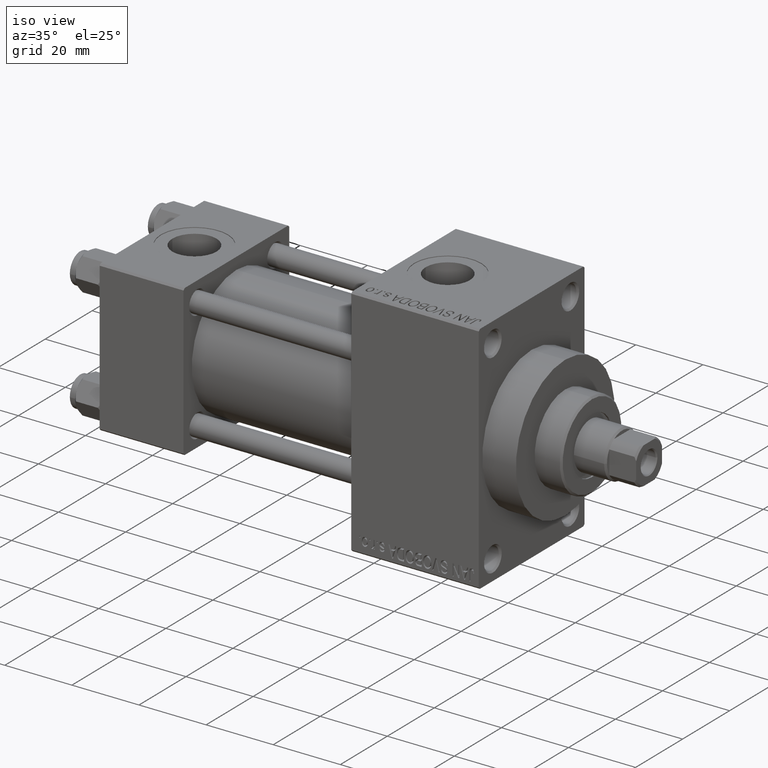
[diagram: clean part render]
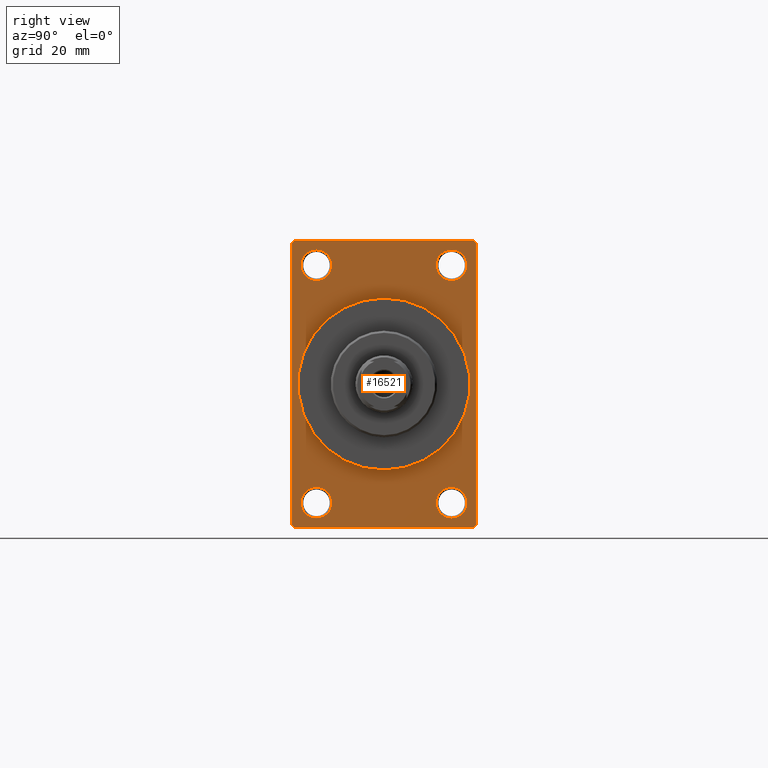
[diagram: tour spotlight — one face highlighted and labeled with its STEP entity id]
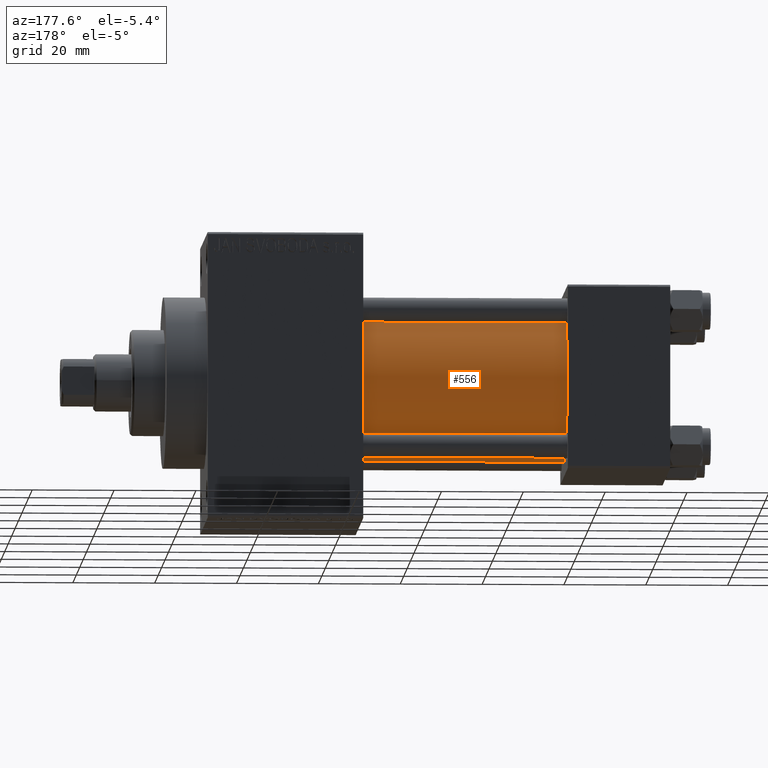
[diagram: tour spotlight — one face highlighted and labeled with its STEP entity id]
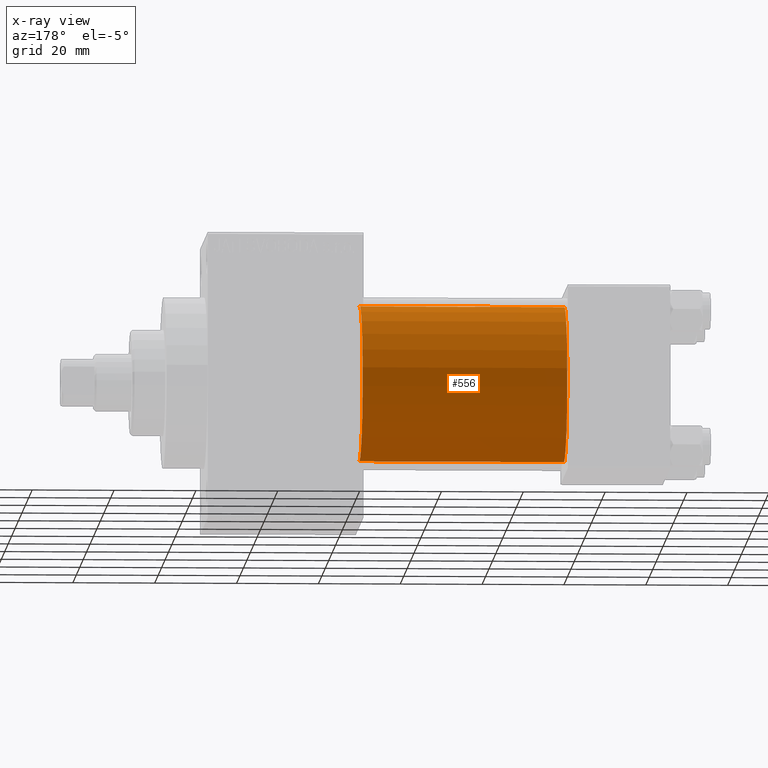
[diagram: x-ray of the same camera — body ghosted, this tour face saturated]
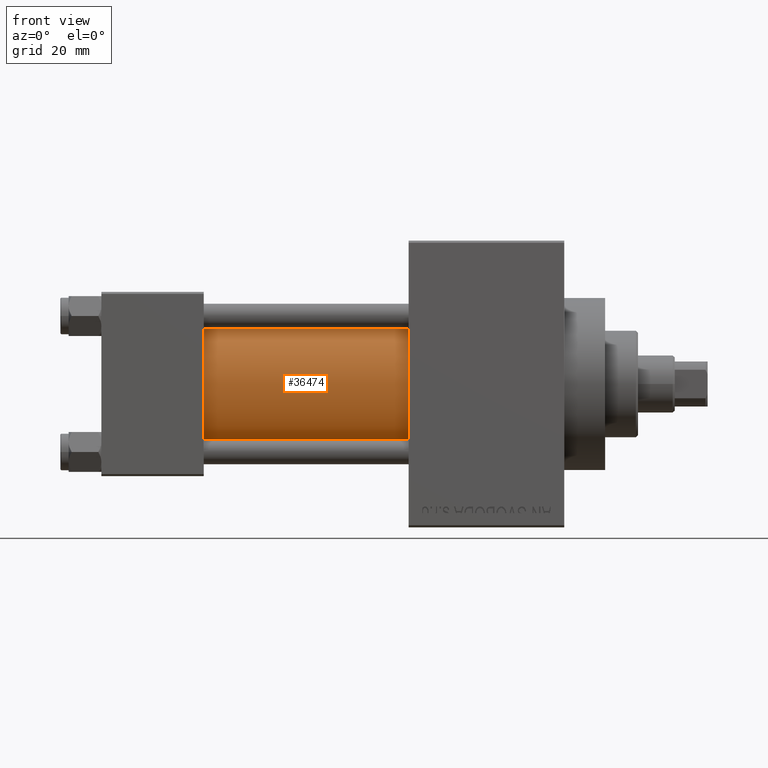
[diagram: tour spotlight — one face highlighted and labeled with its STEP entity id]
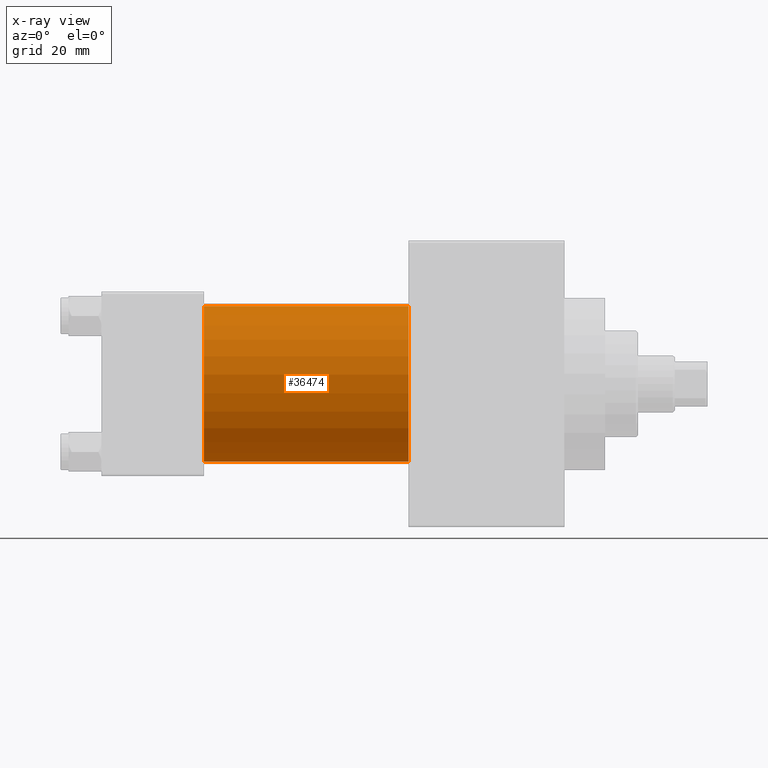
[diagram: x-ray of the same camera — body ghosted, this tour face saturated]
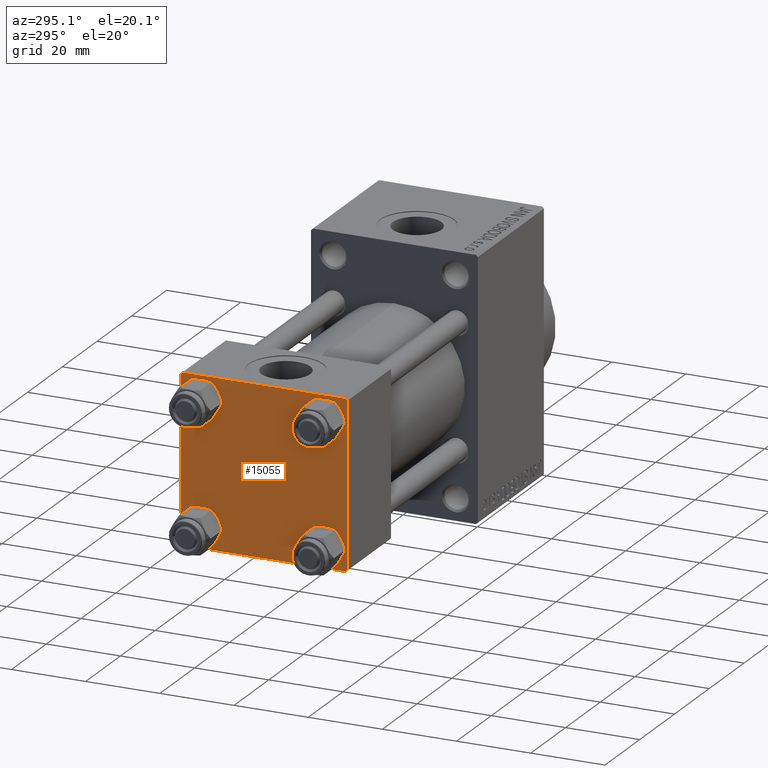
[diagram: tour spotlight — one face highlighted and labeled with its STEP entity id]
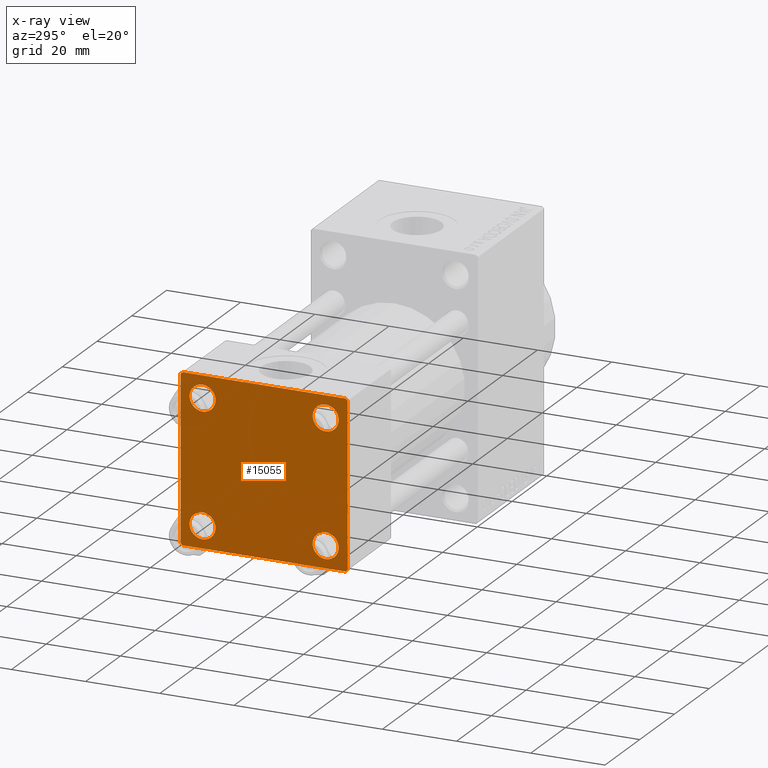
[diagram: x-ray of the same camera — body ghosted, this tour face saturated]
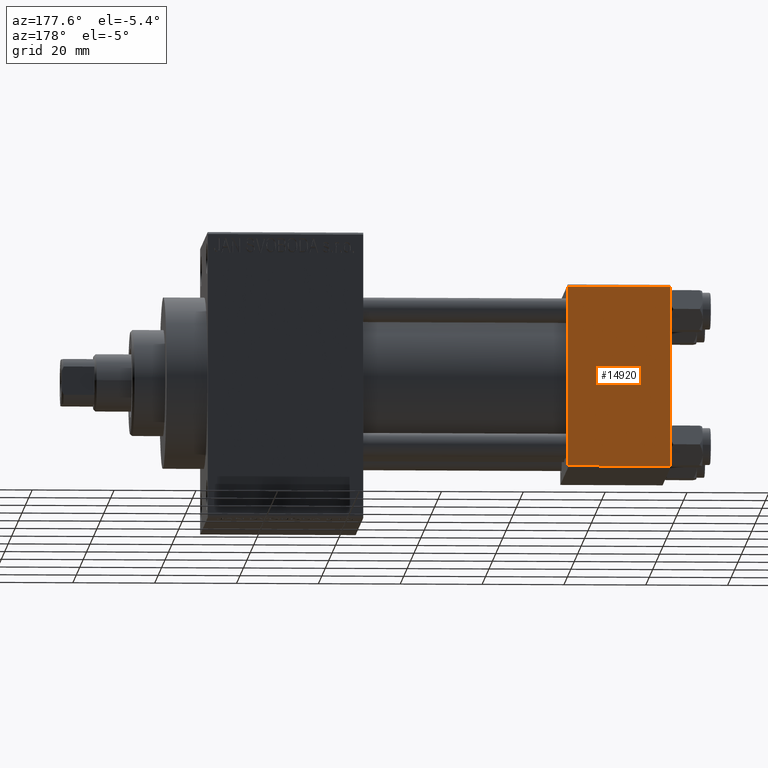
[diagram: tour spotlight — one face highlighted and labeled with its STEP entity id]
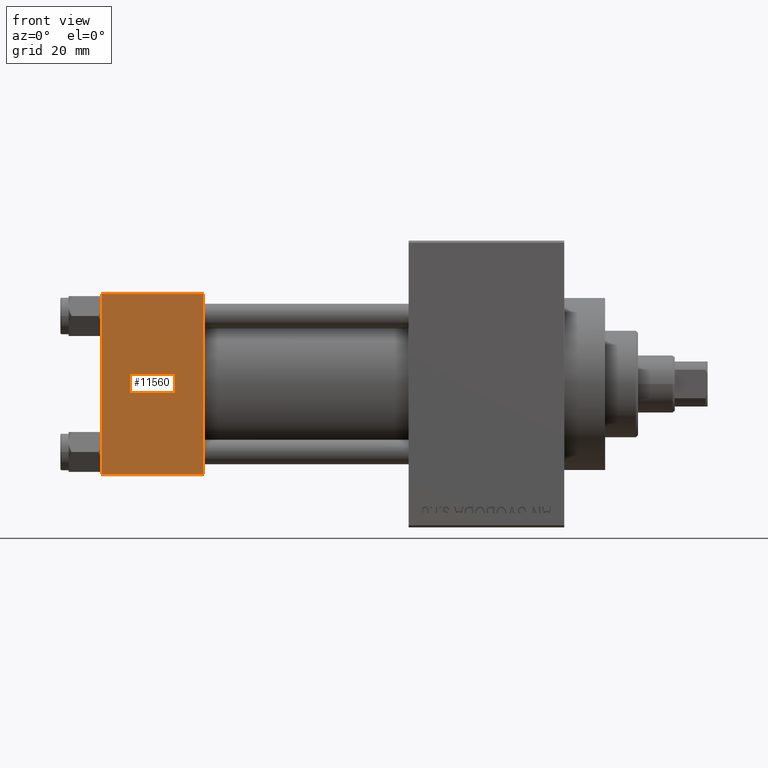
[diagram: tour spotlight — one face highlighted and labeled with its STEP entity id]
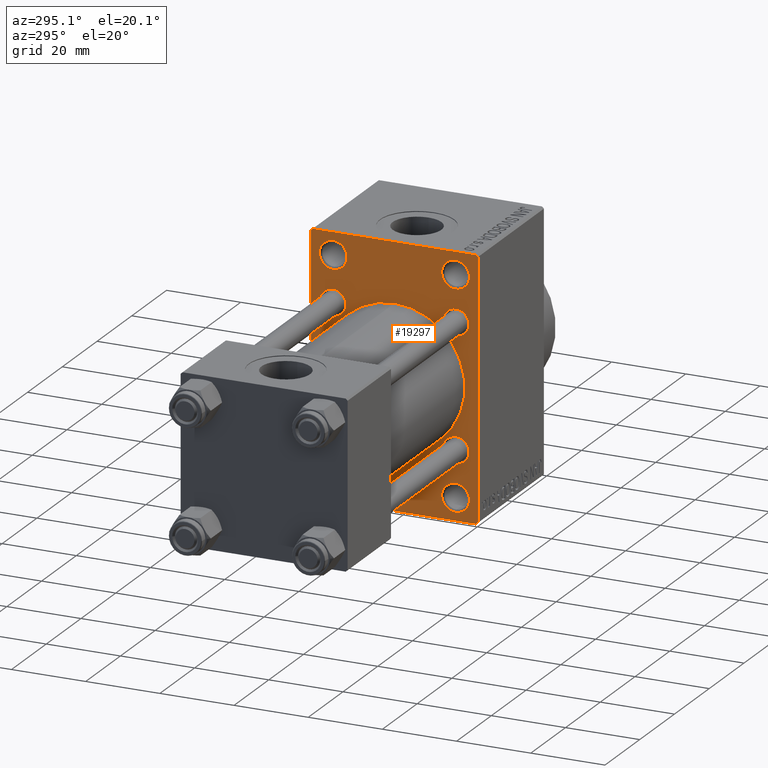
[diagram: tour spotlight — one face highlighted and labeled with its STEP entity id]
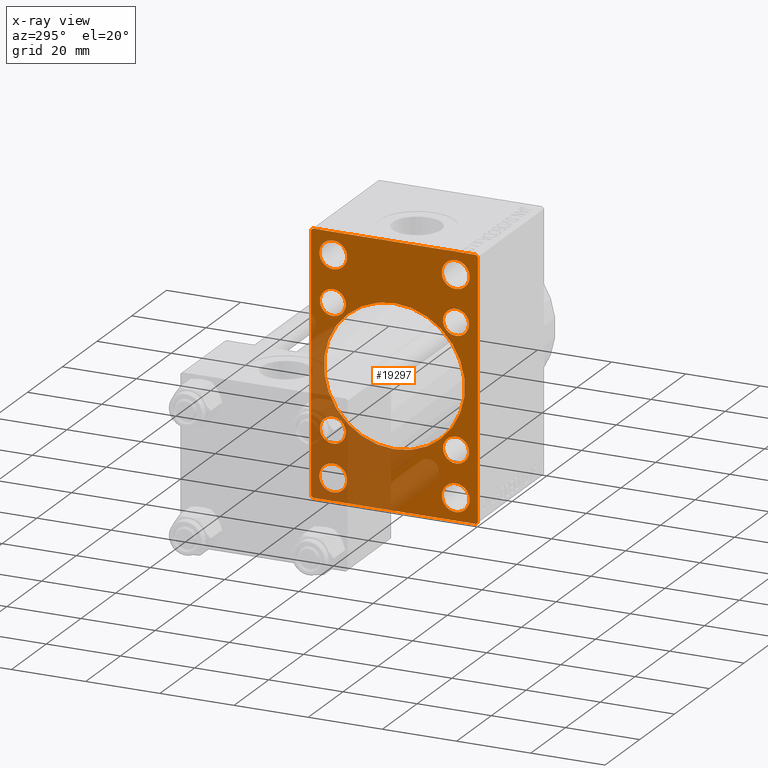
[diagram: x-ray of the same camera — body ghosted, this tour face saturated]
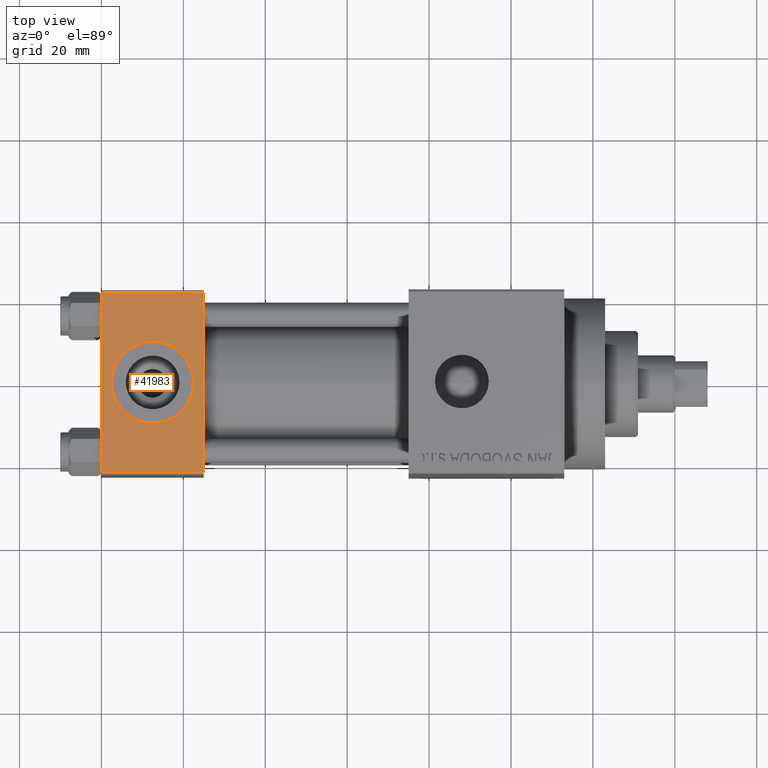
[diagram: tour spotlight — one face highlighted and labeled with its STEP entity id]
A machine part: a face-by-face anatomy tour. The part has 1102 B-rep faces; the first image is the clean iso view, then the 8 largest visible faces are spotlighted one at a time (largest first), each with its STEP entity span.

Face 1 — right view, entity #16521. In plain terms, the highlighted planar face has unit normal (-1, 0, 0).
Definition (entity closure, byte-faithful):
#31 = AXIS2_PLACEMENT_3D ( 'NONE', #10330, #21496, #28672 ) ;
#98 = ORIENTED_EDGE ( 'NONE', *, *, #10599, .T. ) ;
#120 = CARTESIAN_POINT ( 'NONE',  ( 113.0000000000000142, 21.99999999999999645, 35.00000000000000000 ) ) ;
#194 = DIRECTION ( 'NONE',  ( 0.000000000000000000, 0.7071067811865376918, -0.7071067811865574537 ) ) ;
#492 = CARTESIAN_POINT ( 'NONE',  ( 113.0000000000000142, -16.50000000000000000, 25.24999999999993960 ) ) ;
#524 = VERTEX_POINT ( 'NONE', #5676 ) ;
#809 = ORIENTED_EDGE ( 'NONE', *, *, #43229, .T. ) ;
#965 = AXIS2_PLACEMENT_3D ( 'NONE', #5095, #26548, #38460 ) ;
#1078 = DIRECTION ( 'NONE',  ( 0.000000000000000000, 0.000000000000000000, 1.000000000000000000 ) ) ;
#2007 = CIRCLE ( 'NONE', #5036, 21.00000000000000000 ) ;
#2172 = DIRECTION ( 'NONE',  ( 0.000000000000000000, 0.000000000000000000, 1.000000000000000000 ) ) ;
#2342 = EDGE_CURVE ( 'NONE', #30075, #32445, #33110, .T. ) ;
#2430 = VECTOR ( 'NONE', #194, 999.9999999999998863 ) ;
#2895 = VERTEX_POINT ( 'NONE', #37869 ) ;
#3102 = CIRCLE ( 'NONE', #31, 3.750000000000072831 ) ;
#3170 = DIRECTION ( 'NONE',  ( 0.000000000000000000, 0.000000000000000000, 1.000000000000000000 ) ) ;
#3262 = DIRECTION ( 'NONE',  ( -0.000000000000000000, 0.000000000000000000, 1.000000000000000000 ) ) ;
#3737 = DIRECTION ( 'NONE',  ( -1.000000000000000000, -0.000000000000000000, -0.000000000000000000 ) ) ;
#3928 = DIRECTION ( 'NONE',  ( 0.000000000000000000, -0.7071067811865474617, 0.7071067811865474617 ) ) ;
#3941 = ORIENTED_EDGE ( 'NONE', *, *, #17786, .T. ) ;
#4105 = ORIENTED_EDGE ( 'NONE', *, *, #41413, .F. ) ;
#4197 = CARTESIAN_POINT ( 'NONE',  ( 113.0000000000000142, -16.50000000000000000, 32.75000000000007816 ) ) ;
#4204 = CARTESIAN_POINT ( 'NONE',  ( 113.0000000000000142, -16.50000000000000000, -28.99999999999999289 ) ) ;
#4488 = CARTESIAN_POINT ( 'NONE',  ( 113.0000000000000142, 0.000000000000000000, 21.00000000000000000 ) ) ;
#4809 = AXIS2_PLACEMENT_3D ( 'NONE', #23209, #24157, #34662 ) ;
#4989 = VERTEX_POINT ( 'NONE', #4197 ) ;
#5036 = AXIS2_PLACEMENT_3D ( 'NONE', #37028, #40836, #19139 ) ;
#5095 = CARTESIAN_POINT ( 'NONE',  ( 113.0000000000000142, 16.50000000000000000, -28.99999999999999289 ) ) ;
#5097 = EDGE_CURVE ( 'NONE', #524, #19921, #5378, .T. ) ;
#5196 = FACE_OUTER_BOUND ( 'NONE', #19902, .T. ) ;
#5378 = LINE ( 'NONE', #12774, #10653 ) ;
#5609 = DIRECTION ( 'NONE',  ( 0.000000000000000000, -1.000000000000000000, 0.000000000000000000 ) ) ;
#5676 = CARTESIAN_POINT ( 'NONE',  ( 113.0000000000000142, 21.99999999999999645, -35.00000000000000000 ) ) ;
#5833 = AXIS2_PLACEMENT_3D ( 'NONE', #7961, #35074, #2172 ) ;
#6100 = ORIENTED_EDGE ( 'NONE', *, *, #14891, .F. ) ;
#6411 = DIRECTION ( 'NONE',  ( 0.000000000000000000, 0.000000000000000000, -1.000000000000000000 ) ) ;
#6478 = AXIS2_PLACEMENT_3D ( 'NONE', #19202, #23009, #44469 ) ;
#6977 = DIRECTION ( 'NONE',  ( -0.000000000000000000, 0.7071067811865474617, 0.7071067811865474617 ) ) ;
#7136 = CARTESIAN_POINT ( 'NONE',  ( 113.0000000000000142, 21.99999999999999645, 35.00000000000000000 ) ) ;
#7483 = DIRECTION ( 'NONE',  ( 0.000000000000000000, 0.000000000000000000, -1.000000000000000000 ) ) ;
#7538 = ORIENTED_EDGE ( 'NONE', *, *, #32105, .T. ) ;
#7603 = EDGE_LOOP ( 'NONE', ( #14912, #9272 ) ) ;
#7961 = CARTESIAN_POINT ( 'NONE',  ( 113.0000000000000142, 16.50000000000000000, 29.00000000000000355 ) ) ;
#8229 = CARTESIAN_POINT ( 'NONE',  ( 113.0000000000000142, -16.50000000000000000, 29.00000000000000711 ) ) ;
#9272 = ORIENTED_EDGE ( 'NONE', *, *, #18993, .T. ) ;
#10330 = CARTESIAN_POINT ( 'NONE',  ( 113.0000000000000142, 16.50000000000000000, 29.00000000000000355 ) ) ;
#10338 = VERTEX_POINT ( 'NONE', #27845 ) ;
#10599 = EDGE_CURVE ( 'NONE', #2895, #10338, #3102, .T. ) ;
#10653 = VECTOR ( 'NONE', #5609, 1000.000000000000000 ) ;
#10874 = CIRCLE ( 'NONE', #21525, 21.00000000000000000 ) ;
#11049 = CARTESIAN_POINT ( 'NONE',  ( 113.0000000000000142, -21.99999999999997513, -35.00000000000000000 ) ) ;
#11610 = EDGE_LOOP ( 'NONE', ( #46375, #6100 ) ) ;
#11777 = ORIENTED_EDGE ( 'NONE', *, *, #46770, .T. ) ;
#11990 = ORIENTED_EDGE ( 'NONE', *, *, #15729, .T. ) ;
#12227 = CARTESIAN_POINT ( 'NONE',  ( 113.0000000000000142, -22.50000000000000355, 34.50000000000000000 ) ) ;
#12304 = CARTESIAN_POINT ( 'NONE',  ( 113.0000000000000142, 2.571758278209441661E-15, -21.00000000000000000 ) ) ;
#12352 = FACE_BOUND ( 'NONE', #42355, .T. ) ;
#12582 = CARTESIAN_POINT ( 'NONE',  ( 113.0000000000000142, 0.000000000000000000, 0.000000000000000000 ) ) ;
#12586 = EDGE_CURVE ( 'NONE', #27325, #25537, #32776, .T. ) ;
#12710 = ORIENTED_EDGE ( 'NONE', *, *, #5097, .F. ) ;
#12747 = EDGE_CURVE ( 'NONE', #30010, #4989, #35954, .T. ) ;
#12774 = CARTESIAN_POINT ( 'NONE',  ( 113.0000000000000142, 22.49999999999999645, -35.00000000000000000 ) ) ;
#12866 = CARTESIAN_POINT ( 'NONE',  ( 113.0000000000000142, 0.000000000000000000, 0.000000000000000000 ) ) ;
#13285 = DIRECTION ( 'NONE',  ( -1.000000000000000000, 0.000000000000000000, -0.000000000000000000 ) ) ;
#13918 = CIRCLE ( 'NONE', #965, 3.750000000000076383 ) ;
#14275 = CARTESIAN_POINT ( 'NONE',  ( 113.0000000000000142, -21.99999999999998934, 35.00000000000000000 ) ) ;
#14690 = ORIENTED_EDGE ( 'NONE', *, *, #12747, .T. ) ;
#14891 = EDGE_CURVE ( 'NONE', #17650, #23244, #10874, .T. ) ;
#14912 = ORIENTED_EDGE ( 'NONE', *, *, #38055, .T. ) ;
#15729 = EDGE_CURVE ( 'NONE', #30653, #19921, #36444, .T. ) ;
#15975 = CARTESIAN_POINT ( 'NONE',  ( 113.0000000000000142, 16.50000000000000000, -32.75000000000007105 ) ) ;
#16521 = ADVANCED_FACE ( 'NONE', ( #30467, #45014, #12352, #23290, #26895, #5196 ), #34285, .F. ) ;
#16590 = ORIENTED_EDGE ( 'NONE', *, *, #17837, .T. ) ;
#16884 = AXIS2_PLACEMENT_3D ( 'NONE', #12582, #13285, #3262 ) ;
#17054 = ORIENTED_EDGE ( 'NONE', *, *, #45710, .T. ) ;
#17650 = VERTEX_POINT ( 'NONE', #12304 ) ;
#17786 = EDGE_CURVE ( 'NONE', #22958, #30653, #37282, .T. ) ;
#17837 = EDGE_CURVE ( 'NONE', #32445, #30075, #13918, .T. ) ;
#18062 = VECTOR ( 'NONE', #41777, 1000.000000000000114 ) ;
#18076 = CARTESIAN_POINT ( 'NONE',  ( 113.0000000000000142, 22.49999999999999645, 35.00000000000000000 ) ) ;
#18396 = CARTESIAN_POINT ( 'NONE',  ( 113.0000000000000142, -16.50000000000000000, 29.00000000000000711 ) ) ;
#18474 = LINE ( 'NONE', #28113, #38551 ) ;
#18664 = ORIENTED_EDGE ( 'NONE', *, *, #29784, .T. ) ;
#18993 = EDGE_CURVE ( 'NONE', #33464, #27077, #37545, .T. ) ;
#19139 = DIRECTION ( 'NONE',  ( 0.000000000000000000, 0.000000000000000000, -1.000000000000000000 ) ) ;
#19202 = CARTESIAN_POINT ( 'NONE',  ( 113.0000000000000142, 16.50000000000000000, -28.99999999999999289 ) ) ;
#19454 = ORIENTED_EDGE ( 'NONE', *, *, #2342, .T. ) ;
#19902 = EDGE_LOOP ( 'NONE', ( #3941, #11990, #12710, #809, #4105, #35119, #7538, #18664 ) ) ;
#19921 = VERTEX_POINT ( 'NONE', #11049 ) ;
#21496 = DIRECTION ( 'NONE',  ( -1.000000000000000000, -0.000000000000000000, -0.000000000000000000 ) ) ;
#21525 = AXIS2_PLACEMENT_3D ( 'NONE', #12866, #34323, #42411 ) ;
#22097 = DIRECTION ( 'NONE',  ( 0.000000000000000000, -1.000000000000000000, 0.000000000000000000 ) ) ;
#22958 = VERTEX_POINT ( 'NONE', #12227 ) ;
#23009 = DIRECTION ( 'NONE',  ( -1.000000000000000000, -0.000000000000000000, -0.000000000000000000 ) ) ;
#23209 = CARTESIAN_POINT ( 'NONE',  ( 113.0000000000000142, -16.50000000000000000, -28.99999999999999289 ) ) ;
#23244 = VERTEX_POINT ( 'NONE', #4488 ) ;
#23290 = FACE_BOUND ( 'NONE', #44959, .T. ) ;
#24157 = DIRECTION ( 'NONE',  ( -1.000000000000000000, -0.000000000000000000, -0.000000000000000000 ) ) ;
#25537 = VERTEX_POINT ( 'NONE', #7136 ) ;
#26083 = DIRECTION ( 'NONE',  ( -1.000000000000000000, -0.000000000000000000, -0.000000000000000000 ) ) ;
#26548 = DIRECTION ( 'NONE',  ( -1.000000000000000000, -0.000000000000000000, -0.000000000000000000 ) ) ;
#26791 = VECTOR ( 'NONE', #3928, 1000.000000000000114 ) ;
#26895 = FACE_BOUND ( 'NONE', #11610, .T. ) ;
#27077 = VERTEX_POINT ( 'NONE', #45498 ) ;
#27173 = CIRCLE ( 'NONE', #43941, 3.750000000000069278 ) ;
#27325 = VERTEX_POINT ( 'NONE', #45911 ) ;
#27845 = CARTESIAN_POINT ( 'NONE',  ( 113.0000000000000142, 16.50000000000000000, 32.75000000000007816 ) ) ;
#28113 = CARTESIAN_POINT ( 'NONE',  ( 113.0000000000000142, 22.49999999999999645, 35.00000000000000000 ) ) ;
#28672 = DIRECTION ( 'NONE',  ( 0.000000000000000000, 0.000000000000000000, 1.000000000000000000 ) ) ;
#29040 = CARTESIAN_POINT ( 'NONE',  ( 113.0000000000000142, -21.99999999999998934, -35.00000000000000000 ) ) ;
#29784 = EDGE_CURVE ( 'NONE', #42467, #22958, #45348, .T. ) ;
#29981 = LINE ( 'NONE', #18076, #46171 ) ;
#30010 = VERTEX_POINT ( 'NONE', #492 ) ;
#30075 = VERTEX_POINT ( 'NONE', #15975 ) ;
#30467 = FACE_BOUND ( 'NONE', #43837, .T. ) ;
#30574 = CARTESIAN_POINT ( 'NONE',  ( 113.0000000000000142, -22.50000000000000355, -34.49999999999997158 ) ) ;
#30590 = EDGE_CURVE ( 'NONE', #23244, #17650, #2007, .T. ) ;
#30653 = VERTEX_POINT ( 'NONE', #30574 ) ;
#31129 = CIRCLE ( 'NONE', #36480, 3.750000000000076383 ) ;
#32105 = EDGE_CURVE ( 'NONE', #25537, #42467, #29981, .T. ) ;
#32132 = AXIS2_PLACEMENT_3D ( 'NONE', #8229, #26083, #1078 ) ;
#32445 = VERTEX_POINT ( 'NONE', #39723 ) ;
#32776 = LINE ( 'NONE', #120, #26791 ) ;
#33110 = CIRCLE ( 'NONE', #6478, 3.750000000000076383 ) ;
#33460 = VERTEX_POINT ( 'NONE', #41374 ) ;
#33464 = VERTEX_POINT ( 'NONE', #33989 ) ;
#33989 = CARTESIAN_POINT ( 'NONE',  ( 113.0000000000000142, -16.50000000000000000, -25.24999999999992184 ) ) ;
#34285 = PLANE ( 'NONE',  #16884 ) ;
#34323 = DIRECTION ( 'NONE',  ( 1.000000000000000000, 0.000000000000000000, 0.000000000000000000 ) ) ;
#34662 = DIRECTION ( 'NONE',  ( 0.000000000000000000, 0.000000000000000000, 1.000000000000000000 ) ) ;
#34730 = CIRCLE ( 'NONE', #5833, 3.750000000000072831 ) ;
#35074 = DIRECTION ( 'NONE',  ( -1.000000000000000000, -0.000000000000000000, -0.000000000000000000 ) ) ;
#35119 = ORIENTED_EDGE ( 'NONE', *, *, #12586, .T. ) ;
#35369 = CARTESIAN_POINT ( 'NONE',  ( 113.0000000000000142, 22.49999999999999645, -34.50000000000000000 ) ) ;
#35954 = CIRCLE ( 'NONE', #32132, 3.750000000000069278 ) ;
#36444 = LINE ( 'NONE', #29040, #2430 ) ;
#36480 = AXIS2_PLACEMENT_3D ( 'NONE', #4204, #3737, #44016 ) ;
#37028 = CARTESIAN_POINT ( 'NONE',  ( 113.0000000000000142, 0.000000000000000000, 0.000000000000000000 ) ) ;
#37282 = LINE ( 'NONE', #43490, #38290 ) ;
#37495 = CARTESIAN_POINT ( 'NONE',  ( 113.0000000000000142, -22.50000000000000355, 34.50000000000000000 ) ) ;
#37545 = CIRCLE ( 'NONE', #4809, 3.750000000000076383 ) ;
#37869 = CARTESIAN_POINT ( 'NONE',  ( 113.0000000000000142, 16.50000000000000000, 25.24999999999993250 ) ) ;
#38055 = EDGE_CURVE ( 'NONE', #27077, #33464, #31129, .T. ) ;
#38290 = VECTOR ( 'NONE', #7483, 1000.000000000000000 ) ;
#38460 = DIRECTION ( 'NONE',  ( 0.000000000000000000, 0.000000000000000000, 1.000000000000000000 ) ) ;
#38551 = VECTOR ( 'NONE', #6411, 1000.000000000000000 ) ;
#39651 = LINE ( 'NONE', #35369, #42281 ) ;
#39723 = CARTESIAN_POINT ( 'NONE',  ( 113.0000000000000142, 16.50000000000000000, -25.24999999999992184 ) ) ;
#40836 = DIRECTION ( 'NONE',  ( 1.000000000000000000, 0.000000000000000000, 0.000000000000000000 ) ) ;
#41374 = CARTESIAN_POINT ( 'NONE',  ( 113.0000000000000142, 22.49999999999999645, -34.50000000000000000 ) ) ;
#41413 = EDGE_CURVE ( 'NONE', #27325, #33460, #18474, .T. ) ;
#41777 = DIRECTION ( 'NONE',  ( -0.000000000000000000, -0.7071067811865474617, -0.7071067811865474617 ) ) ;
#42281 = VECTOR ( 'NONE', #6977, 1000.000000000000114 ) ;
#42355 = EDGE_LOOP ( 'NONE', ( #19454, #16590 ) ) ;
#42411 = DIRECTION ( 'NONE',  ( 0.000000000000000000, 0.000000000000000000, -1.000000000000000000 ) ) ;
#42467 = VERTEX_POINT ( 'NONE', #14275 ) ;
#43229 = EDGE_CURVE ( 'NONE', #524, #33460, #39651, .T. ) ;
#43490 = CARTESIAN_POINT ( 'NONE',  ( 113.0000000000000142, -22.50000000000000355, 35.00000000000000000 ) ) ;
#43837 = EDGE_LOOP ( 'NONE', ( #14690, #11777 ) ) ;
#43912 = DIRECTION ( 'NONE',  ( -1.000000000000000000, -0.000000000000000000, -0.000000000000000000 ) ) ;
#43941 = AXIS2_PLACEMENT_3D ( 'NONE', #18396, #43912, #3170 ) ;
#44016 = DIRECTION ( 'NONE',  ( 0.000000000000000000, 0.000000000000000000, 1.000000000000000000 ) ) ;
#44469 = DIRECTION ( 'NONE',  ( 0.000000000000000000, 0.000000000000000000, 1.000000000000000000 ) ) ;
#44959 = EDGE_LOOP ( 'NONE', ( #98, #17054 ) ) ;
#45014 = FACE_BOUND ( 'NONE', #7603, .T. ) ;
#45348 = LINE ( 'NONE', #37495, #18062 ) ;
#45498 = CARTESIAN_POINT ( 'NONE',  ( 113.0000000000000142, -16.50000000000000000, -32.75000000000007105 ) ) ;
#45710 = EDGE_CURVE ( 'NONE', #10338, #2895, #34730, .T. ) ;
#45911 = CARTESIAN_POINT ( 'NONE',  ( 113.0000000000000142, 22.49999999999999645, 34.50000000000000000 ) ) ;
#46171 = VECTOR ( 'NONE', #22097, 1000.000000000000000 ) ;
#46375 = ORIENTED_EDGE ( 'NONE', *, *, #30590, .F. ) ;
#46770 = EDGE_CURVE ( 'NONE', #4989, #30010, #27173, .T. ) ;

Face 2 — auxiliary view, entity #556. An x-ray twin of the same camera follows (body ghosted, this face saturated) — the face is partly hidden behind the body. In plain terms, the highlighted cylindrical surface (partial cylindrical patch) has radius 19 mm, axis along (-1, -0, -0).
Definition (entity closure, byte-faithful):
#556 = ADVANCED_FACE ( 'NONE', ( #41689 ), #45035, .T. ) ;
#679 = DIRECTION ( 'NONE',  ( 1.000000000000000000, -0.000000000000000000, 0.000000000000000000 ) ) ;
#691 = EDGE_LOOP ( 'NONE', ( #15990, #16523, #23365, #14337 ) ) ;
#1153 = DIRECTION ( 'NONE',  ( 0.000000000000000000, 0.000000000000000000, 1.000000000000000000 ) ) ;
#2481 = CARTESIAN_POINT ( 'NONE',  ( 75.00000000000001421, -2.752562955852396712E-16, -19.00000000000000000 ) ) ;
#4240 = EDGE_CURVE ( 'NONE', #44017, #28613, #30412, .T. ) ;
#5477 = CIRCLE ( 'NONE', #32129, 19.00000000000000000 ) ;
#5757 = CARTESIAN_POINT ( 'NONE',  ( 75.00000000000001421, -2.602085213965210642E-15, 19.00000000000000000 ) ) ;
#5848 = VECTOR ( 'NONE', #27112, 1000.000000000000000 ) ;
#6664 = LINE ( 'NONE', #28821, #33169 ) ;
#7946 = VERTEX_POINT ( 'NONE', #45924 ) ;
#8439 = VERTEX_POINT ( 'NONE', #40592 ) ;
#9040 = DIRECTION ( 'NONE',  ( -1.000000000000000000, -0.000000000000000000, -0.000000000000000000 ) ) ;
#14034 = CARTESIAN_POINT ( 'NONE',  ( 25.00000000000000000, -2.602085213965210642E-15, 0.000000000000000000 ) ) ;
#14337 = ORIENTED_EDGE ( 'NONE', *, *, #26418, .F. ) ;
#15774 = EDGE_CURVE ( 'NONE', #8439, #7946, #5477, .T. ) ;
#15990 = ORIENTED_EDGE ( 'NONE', *, *, #4240, .F. ) ;
#16523 = ORIENTED_EDGE ( 'NONE', *, *, #32158, .T. ) ;
#17751 = AXIS2_PLACEMENT_3D ( 'NONE', #23784, #9040, #38344 ) ;
#20180 = LINE ( 'NONE', #41894, #5848 ) ;
#23365 = ORIENTED_EDGE ( 'NONE', *, *, #15774, .T. ) ;
#23784 = CARTESIAN_POINT ( 'NONE',  ( 75.00000000000001421, -2.602085213965210642E-15, 0.000000000000000000 ) ) ;
#26418 = EDGE_CURVE ( 'NONE', #28613, #7946, #6664, .T. ) ;
#27112 = DIRECTION ( 'NONE',  ( -1.000000000000000000, -0.000000000000000000, -0.000000000000000000 ) ) ;
#28584 = DIRECTION ( 'NONE',  ( -1.000000000000000000, -0.000000000000000000, -0.000000000000000000 ) ) ;
#28613 = VERTEX_POINT ( 'NONE', #5757 ) ;
#28821 = CARTESIAN_POINT ( 'NONE',  ( 75.00000000000001421, -2.602085213965210642E-15, 19.00000000000000000 ) ) ;
#30412 = CIRCLE ( 'NONE', #42572, 19.00000000000000000 ) ;
#32129 = AXIS2_PLACEMENT_3D ( 'NONE', #14034, #679, #1153 ) ;
#32158 = EDGE_CURVE ( 'NONE', #44017, #8439, #20180, .T. ) ;
#33169 = VECTOR ( 'NONE', #28584, 1000.000000000000000 ) ;
#36046 = DIRECTION ( 'NONE',  ( 1.000000000000000000, 0.000000000000000000, 0.000000000000000000 ) ) ;
#38344 = DIRECTION ( 'NONE',  ( 0.000000000000000000, 0.000000000000000000, 1.000000000000000000 ) ) ;
#40592 = CARTESIAN_POINT ( 'NONE',  ( 25.00000000000000000, -2.752562955852396712E-16, -19.00000000000000000 ) ) ;
#41689 = FACE_OUTER_BOUND ( 'NONE', #691, .T. ) ;
#41894 = CARTESIAN_POINT ( 'NONE',  ( 75.00000000000001421, -2.752562955852396712E-16, -19.00000000000000000 ) ) ;
#42572 = AXIS2_PLACEMENT_3D ( 'NONE', #43190, #36046, #44591 ) ;
#43190 = CARTESIAN_POINT ( 'NONE',  ( 75.00000000000001421, -2.602085213965210642E-15, 0.000000000000000000 ) ) ;
#44017 = VERTEX_POINT ( 'NONE', #2481 ) ;
#44591 = DIRECTION ( 'NONE',  ( 0.000000000000000000, 0.000000000000000000, -1.000000000000000000 ) ) ;
#45035 = CYLINDRICAL_SURFACE ( 'NONE', #17751, 19.00000000000000000 ) ;
#45924 = CARTESIAN_POINT ( 'NONE',  ( 25.00000000000000000, -2.602085213965210642E-15, 19.00000000000000000 ) ) ;

Face 3 — front view, entity #36474. An x-ray twin of the same camera follows (body ghosted, this face saturated) — the face is partly hidden behind the body. In plain terms, the highlighted cylindrical surface (partial cylindrical patch) has radius 19 mm, axis along (-1, -0, -0).
Definition (entity closure, byte-faithful):
#2481 = CARTESIAN_POINT ( 'NONE',  ( 75.00000000000001421, -2.752562955852396712E-16, -19.00000000000000000 ) ) ;
#5200 = AXIS2_PLACEMENT_3D ( 'NONE', #7711, #7477, #33697 ) ;
#5757 = CARTESIAN_POINT ( 'NONE',  ( 75.00000000000001421, -2.602085213965210642E-15, 19.00000000000000000 ) ) ;
#5848 = VECTOR ( 'NONE', #27112, 1000.000000000000000 ) ;
#6664 = LINE ( 'NONE', #28821, #33169 ) ;
#6793 = ORIENTED_EDGE ( 'NONE', *, *, #26418, .T. ) ;
#7477 = DIRECTION ( 'NONE',  ( -1.000000000000000000, -0.000000000000000000, -0.000000000000000000 ) ) ;
#7711 = CARTESIAN_POINT ( 'NONE',  ( 75.00000000000001421, -2.602085213965210642E-15, 0.000000000000000000 ) ) ;
#7946 = VERTEX_POINT ( 'NONE', #45924 ) ;
#8439 = VERTEX_POINT ( 'NONE', #40592 ) ;
#8477 = DIRECTION ( 'NONE',  ( 0.000000000000000000, 0.000000000000000000, 1.000000000000000000 ) ) ;
#13039 = DIRECTION ( 'NONE',  ( 1.000000000000000000, 0.000000000000000000, 0.000000000000000000 ) ) ;
#13932 = ORIENTED_EDGE ( 'NONE', *, *, #41545, .T. ) ;
#16313 = DIRECTION ( 'NONE',  ( 1.000000000000000000, -0.000000000000000000, 0.000000000000000000 ) ) ;
#16447 = CIRCLE ( 'NONE', #41608, 19.00000000000000000 ) ;
#20180 = LINE ( 'NONE', #41894, #5848 ) ;
#26055 = CYLINDRICAL_SURFACE ( 'NONE', #5200, 19.00000000000000000 ) ;
#26418 = EDGE_CURVE ( 'NONE', #28613, #7946, #6664, .T. ) ;
#27112 = DIRECTION ( 'NONE',  ( -1.000000000000000000, -0.000000000000000000, -0.000000000000000000 ) ) ;
#27814 = DIRECTION ( 'NONE',  ( 0.000000000000000000, 0.000000000000000000, -1.000000000000000000 ) ) ;
#28584 = DIRECTION ( 'NONE',  ( -1.000000000000000000, -0.000000000000000000, -0.000000000000000000 ) ) ;
#28613 = VERTEX_POINT ( 'NONE', #5757 ) ;
#28821 = CARTESIAN_POINT ( 'NONE',  ( 75.00000000000001421, -2.602085213965210642E-15, 19.00000000000000000 ) ) ;
#29221 = EDGE_CURVE ( 'NONE', #28613, #44017, #46987, .T. ) ;
#31238 = EDGE_LOOP ( 'NONE', ( #32517, #31794, #6793, #13932 ) ) ;
#31794 = ORIENTED_EDGE ( 'NONE', *, *, #29221, .F. ) ;
#32158 = EDGE_CURVE ( 'NONE', #44017, #8439, #20180, .T. ) ;
#32517 = ORIENTED_EDGE ( 'NONE', *, *, #32158, .F. ) ;
#33169 = VECTOR ( 'NONE', #28584, 1000.000000000000000 ) ;
#33697 = DIRECTION ( 'NONE',  ( 0.000000000000000000, 0.000000000000000000, 1.000000000000000000 ) ) ;
#34097 = CARTESIAN_POINT ( 'NONE',  ( 75.00000000000001421, -2.602085213965210642E-15, 0.000000000000000000 ) ) ;
#36474 = ADVANCED_FACE ( 'NONE', ( #40149 ), #26055, .T. ) ;
#37316 = CARTESIAN_POINT ( 'NONE',  ( 25.00000000000000000, -2.602085213965210642E-15, 0.000000000000000000 ) ) ;
#40149 = FACE_OUTER_BOUND ( 'NONE', #31238, .T. ) ;
#40592 = CARTESIAN_POINT ( 'NONE',  ( 25.00000000000000000, -2.752562955852396712E-16, -19.00000000000000000 ) ) ;
#40900 = AXIS2_PLACEMENT_3D ( 'NONE', #34097, #13039, #27814 ) ;
#41545 = EDGE_CURVE ( 'NONE', #7946, #8439, #16447, .T. ) ;
#41608 = AXIS2_PLACEMENT_3D ( 'NONE', #37316, #16313, #8477 ) ;
#41894 = CARTESIAN_POINT ( 'NONE',  ( 75.00000000000001421, -2.752562955852396712E-16, -19.00000000000000000 ) ) ;
#44017 = VERTEX_POINT ( 'NONE', #2481 ) ;
#45924 = CARTESIAN_POINT ( 'NONE',  ( 25.00000000000000000, -2.602085213965210642E-15, 19.00000000000000000 ) ) ;
#46987 = CIRCLE ( 'NONE', #40900, 19.00000000000000000 ) ;

Face 4 — auxiliary view, entity #15055. An x-ray twin of the same camera follows (body ghosted, this face saturated) — the face is partly hidden behind the body. In plain terms, the highlighted planar face has unit normal (-1, 0, 0).
Definition (entity closure, byte-faithful):
#164 = CIRCLE ( 'NONE', #27570, 3.499999999999996003 ) ;
#491 = CIRCLE ( 'NONE', #13431, 3.499999999999996003 ) ;
#909 = FACE_BOUND ( 'NONE', #7882, .T. ) ;
#1145 = FACE_BOUND ( 'NONE', #10253, .T. ) ;
#1907 = VECTOR ( 'NONE', #29038, 1000.000000000000000 ) ;
#2662 = VERTEX_POINT ( 'NONE', #18904 ) ;
#3086 = LINE ( 'NONE', #28124, #34713 ) ;
#3303 = DIRECTION ( 'NONE',  ( 0.000000000000000000, 0.000000000000000000, 1.000000000000000000 ) ) ;
#3685 = DIRECTION ( 'NONE',  ( 1.000000000000000000, -0.000000000000000000, 0.000000000000000000 ) ) ;
#4013 = AXIS2_PLACEMENT_3D ( 'NONE', #36899, #22813, #8532 ) ;
#4157 = CARTESIAN_POINT ( 'NONE',  ( 0.000000000000000000, -22.50000000000000000, 22.00000000000000000 ) ) ;
#4303 = CARTESIAN_POINT ( 'NONE',  ( 0.000000000000000000, 16.59999999999999787, 16.60000000000000497 ) ) ;
#5003 = CIRCLE ( 'NONE', #20977, 3.499999999999996003 ) ;
#5746 = VECTOR ( 'NONE', #38815, 999.9999999999998863 ) ;
#7276 = LINE ( 'NONE', #36381, #20993 ) ;
#7291 = ORIENTED_EDGE ( 'NONE', *, *, #19323, .T. ) ;
#7882 = EDGE_LOOP ( 'NONE', ( #19520, #27209 ) ) ;
#8299 = FACE_BOUND ( 'NONE', #37453, .T. ) ;
#8532 = DIRECTION ( 'NONE',  ( -0.000000000000000000, 0.000000000000000000, 1.000000000000000000 ) ) ;
#8915 = VERTEX_POINT ( 'NONE', #45988 ) ;
#9033 = ORIENTED_EDGE ( 'NONE', *, *, #10826, .F. ) ;
#9589 = CARTESIAN_POINT ( 'NONE',  ( 0.000000000000000000, -16.59999999999999076, -16.60000000000000853 ) ) ;
#9730 = CARTESIAN_POINT ( 'NONE',  ( 0.000000000000000000, 16.59999999999999787, -16.60000000000000497 ) ) ;
#9741 = ORIENTED_EDGE ( 'NONE', *, *, #23191, .T. ) ;
#10253 = EDGE_LOOP ( 'NONE', ( #30455, #15189 ) ) ;
#10693 = ORIENTED_EDGE ( 'NONE', *, *, #16534, .T. ) ;
#10815 = CARTESIAN_POINT ( 'NONE',  ( 0.000000000000000000, 16.59999999999999787, -16.60000000000000497 ) ) ;
#10826 = EDGE_CURVE ( 'NONE', #43069, #45840, #22909, .T. ) ;
#11489 = ORIENTED_EDGE ( 'NONE', *, *, #40795, .T. ) ;
#11871 = LINE ( 'NONE', #32844, #1907 ) ;
#12910 = LINE ( 'NONE', #19584, #31698 ) ;
#12999 = DIRECTION ( 'NONE',  ( 1.000000000000000000, -0.000000000000000000, 0.000000000000000000 ) ) ;
#13330 = DIRECTION ( 'NONE',  ( 1.000000000000000000, -0.000000000000000000, 0.000000000000000000 ) ) ;
#13431 = AXIS2_PLACEMENT_3D ( 'NONE', #4303, #33386, #44341 ) ;
#13827 = DIRECTION ( 'NONE',  ( 1.000000000000000000, -0.000000000000000000, 0.000000000000000000 ) ) ;
#14225 = DIRECTION ( 'NONE',  ( 0.000000000000000000, -0.7071067811865426878, 0.7071067811865524577 ) ) ;
#14442 = DIRECTION ( 'NONE',  ( 0.000000000000000000, 0.000000000000000000, -1.000000000000000000 ) ) ;
#15055 = ADVANCED_FACE ( 'NONE', ( #1145, #8299, #29264, #909, #29505 ), #22570, .T. ) ;
#15189 = ORIENTED_EDGE ( 'NONE', *, *, #26556, .T. ) ;
#15622 = CARTESIAN_POINT ( 'NONE',  ( 0.000000000000000000, 16.59999999999999787, 16.60000000000000497 ) ) ;
#15666 = AXIS2_PLACEMENT_3D ( 'NONE', #10815, #35858, #43930 ) ;
#15844 = VERTEX_POINT ( 'NONE', #33570 ) ;
#16006 = DIRECTION ( 'NONE',  ( -0.000000000000000000, -0.7071067811865426878, -0.7071067811865524577 ) ) ;
#16534 = EDGE_CURVE ( 'NONE', #2662, #28532, #43522, .T. ) ;
#16790 = EDGE_CURVE ( 'NONE', #28724, #32225, #164, .T. ) ;
#16885 = DIRECTION ( 'NONE',  ( 0.000000000000000000, 0.7071067811865474617, -0.7071067811865474617 ) ) ;
#17117 = CIRCLE ( 'NONE', #24725, 3.499999999999996003 ) ;
#17345 = VERTEX_POINT ( 'NONE', #31175 ) ;
#17761 = DIRECTION ( 'NONE',  ( 0.000000000000000000, 0.000000000000000000, 1.000000000000000000 ) ) ;
#18575 = CARTESIAN_POINT ( 'NONE',  ( 0.000000000000000000, -16.59999999999999076, 13.10000000000001030 ) ) ;
#18895 = LINE ( 'NONE', #46870, #23282 ) ;
#18904 = CARTESIAN_POINT ( 'NONE',  ( 0.000000000000000000, 16.59999999999999787, -13.10000000000000675 ) ) ;
#19264 = AXIS2_PLACEMENT_3D ( 'NONE', #9589, #23624, #20052 ) ;
#19323 = EDGE_CURVE ( 'NONE', #8915, #17345, #27636, .T. ) ;
#19520 = ORIENTED_EDGE ( 'NONE', *, *, #42149, .T. ) ;
#19584 = CARTESIAN_POINT ( 'NONE',  ( 0.000000000000000000, 22.25000000000014566, -22.24999999999984013 ) ) ;
#19810 = DIRECTION ( 'NONE',  ( 0.000000000000000000, 0.000000000000000000, -1.000000000000000000 ) ) ;
#20052 = DIRECTION ( 'NONE',  ( 0.000000000000000000, 0.000000000000000000, 1.000000000000000000 ) ) ;
#20965 = CARTESIAN_POINT ( 'NONE',  ( 0.000000000000000000, -22.50000000000000000, -21.99999999999997158 ) ) ;
#20977 = AXIS2_PLACEMENT_3D ( 'NONE', #25137, #3685, #17761 ) ;
#20993 = VECTOR ( 'NONE', #14442, 1000.000000000000000 ) ;
#21361 = DIRECTION ( 'NONE',  ( 0.000000000000000000, 0.000000000000000000, 1.000000000000000000 ) ) ;
#22570 = PLANE ( 'NONE',  #4013 ) ;
#22668 = CARTESIAN_POINT ( 'NONE',  ( 0.000000000000000000, -22.50000000000000000, 22.50000000000000000 ) ) ;
#22813 = DIRECTION ( 'NONE',  ( -1.000000000000000000, 0.000000000000000000, -0.000000000000000000 ) ) ;
#22909 = LINE ( 'NONE', #22668, #28958 ) ;
#23105 = CARTESIAN_POINT ( 'NONE',  ( 0.000000000000000000, 16.59999999999999787, 13.10000000000000675 ) ) ;
#23158 = EDGE_CURVE ( 'NONE', #32919, #43647, #17117, .T. ) ;
#23191 = EDGE_CURVE ( 'NONE', #23845, #15844, #11871, .T. ) ;
#23282 = VECTOR ( 'NONE', #14225, 1000.000000000000000 ) ;
#23624 = DIRECTION ( 'NONE',  ( 1.000000000000000000, -0.000000000000000000, 0.000000000000000000 ) ) ;
#23733 = ORIENTED_EDGE ( 'NONE', *, *, #45181, .T. ) ;
#23845 = VERTEX_POINT ( 'NONE', #45502 ) ;
#24253 = CARTESIAN_POINT ( 'NONE',  ( -0.000000000000000000, -22.24999999999984013, 22.25000000000015277 ) ) ;
#24725 = AXIS2_PLACEMENT_3D ( 'NONE', #28572, #13330, #3303 ) ;
#24850 = CIRCLE ( 'NONE', #38586, 3.499999999999996003 ) ;
#24945 = EDGE_CURVE ( 'NONE', #43069, #40560, #27840, .T. ) ;
#24967 = CARTESIAN_POINT ( 'NONE',  ( 0.000000000000000000, 22.24999999999999645, 22.24999999999999645 ) ) ;
#25137 = CARTESIAN_POINT ( 'NONE',  ( 0.000000000000000000, -16.59999999999999076, 16.60000000000000853 ) ) ;
#25943 = ORIENTED_EDGE ( 'NONE', *, *, #24945, .T. ) ;
#26401 = EDGE_CURVE ( 'NONE', #39123, #40560, #3086, .T. ) ;
#26556 = EDGE_CURVE ( 'NONE', #43647, #32919, #5003, .T. ) ;
#26857 = CARTESIAN_POINT ( 'NONE',  ( 0.000000000000000000, 21.99999999999999289, 22.50000000000000355 ) ) ;
#27209 = ORIENTED_EDGE ( 'NONE', *, *, #16790, .T. ) ;
#27570 = AXIS2_PLACEMENT_3D ( 'NONE', #15622, #12999, #30175 ) ;
#27636 = CIRCLE ( 'NONE', #19264, 3.499999999999996003 ) ;
#27840 = LINE ( 'NONE', #24253, #5746 ) ;
#28124 = CARTESIAN_POINT ( 'NONE',  ( 0.000000000000000000, 22.50000000000000000, 22.50000000000000355 ) ) ;
#28376 = DIRECTION ( 'NONE',  ( 0.000000000000000000, 0.000000000000000000, 1.000000000000000000 ) ) ;
#28532 = VERTEX_POINT ( 'NONE', #36777 ) ;
#28572 = CARTESIAN_POINT ( 'NONE',  ( 0.000000000000000000, -16.59999999999999076, 16.60000000000000853 ) ) ;
#28724 = VERTEX_POINT ( 'NONE', #23105 ) ;
#28958 = VECTOR ( 'NONE', #19810, 1000.000000000000000 ) ;
#29038 = DIRECTION ( 'NONE',  ( 0.000000000000000000, -1.000000000000000000, -2.312964634635742957E-16 ) ) ;
#29055 = AXIS2_PLACEMENT_3D ( 'NONE', #9730, #43072, #21361 ) ;
#29159 = CARTESIAN_POINT ( 'NONE',  ( 0.000000000000000000, 22.50000000000000000, -21.99999999999996803 ) ) ;
#29264 = FACE_BOUND ( 'NONE', #32657, .T. ) ;
#29505 = FACE_OUTER_BOUND ( 'NONE', #35283, .T. ) ;
#30175 = DIRECTION ( 'NONE',  ( 0.000000000000000000, 0.000000000000000000, 1.000000000000000000 ) ) ;
#30455 = ORIENTED_EDGE ( 'NONE', *, *, #23158, .T. ) ;
#30550 = EDGE_CURVE ( 'NONE', #15844, #45840, #18895, .T. ) ;
#30872 = CIRCLE ( 'NONE', #15666, 3.499999999999996003 ) ;
#31157 = CARTESIAN_POINT ( 'NONE',  ( 0.000000000000000000, 16.59999999999999787, 20.10000000000000142 ) ) ;
#31175 = CARTESIAN_POINT ( 'NONE',  ( 0.000000000000000000, -16.59999999999999076, -20.10000000000000497 ) ) ;
#31350 = CARTESIAN_POINT ( 'NONE',  ( 0.000000000000000000, 22.50000000000000000, 21.99999999999999645 ) ) ;
#31695 = DIRECTION ( 'NONE',  ( 0.000000000000000000, -1.000000000000000000, -7.709882115452476934E-17 ) ) ;
#31698 = VECTOR ( 'NONE', #16006, 1000.000000000000000 ) ;
#32225 = VERTEX_POINT ( 'NONE', #31157 ) ;
#32395 = ORIENTED_EDGE ( 'NONE', *, *, #38879, .T. ) ;
#32657 = EDGE_LOOP ( 'NONE', ( #10693, #11489 ) ) ;
#32844 = CARTESIAN_POINT ( 'NONE',  ( 0.000000000000000000, 22.50000000000000000, -22.49999999999999645 ) ) ;
#32919 = VERTEX_POINT ( 'NONE', #36211 ) ;
#33386 = DIRECTION ( 'NONE',  ( 1.000000000000000000, -0.000000000000000000, 0.000000000000000000 ) ) ;
#33570 = CARTESIAN_POINT ( 'NONE',  ( 0.000000000000000000, -21.99999999999997158, -22.50000000000000711 ) ) ;
#34713 = VECTOR ( 'NONE', #31695, 1000.000000000000000 ) ;
#34881 = VERTEX_POINT ( 'NONE', #29159 ) ;
#34988 = VECTOR ( 'NONE', #16885, 1000.000000000000114 ) ;
#35283 = EDGE_LOOP ( 'NONE', ( #23733, #45545, #9741, #46644, #9033, #25943, #39765, #32395 ) ) ;
#35541 = CARTESIAN_POINT ( 'NONE',  ( 0.000000000000000000, -16.59999999999999076, -16.60000000000000853 ) ) ;
#35858 = DIRECTION ( 'NONE',  ( 1.000000000000000000, -0.000000000000000000, 0.000000000000000000 ) ) ;
#36211 = CARTESIAN_POINT ( 'NONE',  ( 0.000000000000000000, -16.59999999999999076, 20.10000000000000853 ) ) ;
#36381 = CARTESIAN_POINT ( 'NONE',  ( 0.000000000000000000, 22.50000000000000000, 22.50000000000000355 ) ) ;
#36777 = CARTESIAN_POINT ( 'NONE',  ( 0.000000000000000000, 16.59999999999999787, -20.10000000000000142 ) ) ;
#36899 = CARTESIAN_POINT ( 'NONE',  ( 0.000000000000000000, 0.000000000000000000, 0.000000000000000000 ) ) ;
#37034 = VERTEX_POINT ( 'NONE', #31350 ) ;
#37068 = ORIENTED_EDGE ( 'NONE', *, *, #45857, .T. ) ;
#37076 = CARTESIAN_POINT ( 'NONE',  ( 0.000000000000000000, -21.99999999999997868, 22.50000000000000000 ) ) ;
#37453 = EDGE_LOOP ( 'NONE', ( #7291, #37068 ) ) ;
#38586 = AXIS2_PLACEMENT_3D ( 'NONE', #35541, #13827, #28376 ) ;
#38815 = DIRECTION ( 'NONE',  ( -0.000000000000000000, 0.7071067811865525687, 0.7071067811865425767 ) ) ;
#38879 = EDGE_CURVE ( 'NONE', #39123, #37034, #39290, .T. ) ;
#39123 = VERTEX_POINT ( 'NONE', #26857 ) ;
#39290 = LINE ( 'NONE', #24967, #34988 ) ;
#39765 = ORIENTED_EDGE ( 'NONE', *, *, #26401, .F. ) ;
#40560 = VERTEX_POINT ( 'NONE', #37076 ) ;
#40795 = EDGE_CURVE ( 'NONE', #28532, #2662, #30872, .T. ) ;
#42149 = EDGE_CURVE ( 'NONE', #32225, #28724, #491, .T. ) ;
#43069 = VERTEX_POINT ( 'NONE', #4157 ) ;
#43072 = DIRECTION ( 'NONE',  ( 1.000000000000000000, -0.000000000000000000, 0.000000000000000000 ) ) ;
#43522 = CIRCLE ( 'NONE', #29055, 3.499999999999996003 ) ;
#43647 = VERTEX_POINT ( 'NONE', #18575 ) ;
#43930 = DIRECTION ( 'NONE',  ( 0.000000000000000000, 0.000000000000000000, 1.000000000000000000 ) ) ;
#44341 = DIRECTION ( 'NONE',  ( 0.000000000000000000, 0.000000000000000000, 1.000000000000000000 ) ) ;
#45181 = EDGE_CURVE ( 'NONE', #37034, #34881, #7276, .T. ) ;
#45450 = EDGE_CURVE ( 'NONE', #34881, #23845, #12910, .T. ) ;
#45502 = CARTESIAN_POINT ( 'NONE',  ( 0.000000000000000000, 21.99999999999999289, -22.49999999999999645 ) ) ;
#45545 = ORIENTED_EDGE ( 'NONE', *, *, #45450, .T. ) ;
#45840 = VERTEX_POINT ( 'NONE', #20965 ) ;
#45857 = EDGE_CURVE ( 'NONE', #17345, #8915, #24850, .T. ) ;
#45988 = CARTESIAN_POINT ( 'NONE',  ( 0.000000000000000000, -16.59999999999999076, -13.10000000000001030 ) ) ;
#46644 = ORIENTED_EDGE ( 'NONE', *, *, #30550, .T. ) ;
#46870 = CARTESIAN_POINT ( 'NONE',  ( 0.000000000000000000, -22.25000000000014566, -22.24999999999984013 ) ) ;

Face 5 — auxiliary view, entity #14920. In plain terms, the highlighted planar face has unit normal (0, 1, 0).
Definition (entity closure, byte-faithful):
#1236 = CARTESIAN_POINT ( 'NONE',  ( 25.00000000000000000, 22.50000000000000000, -21.99999999999998224 ) ) ;
#2466 = VECTOR ( 'NONE', #39686, 1000.000000000000000 ) ;
#3439 = LINE ( 'NONE', #17983, #2466 ) ;
#7276 = LINE ( 'NONE', #36381, #20993 ) ;
#9106 = LINE ( 'NONE', #26981, #44556 ) ;
#11723 = LINE ( 'NONE', #1236, #21715 ) ;
#14442 = DIRECTION ( 'NONE',  ( 0.000000000000000000, 0.000000000000000000, -1.000000000000000000 ) ) ;
#14740 = ORIENTED_EDGE ( 'NONE', *, *, #45181, .F. ) ;
#14920 = ADVANCED_FACE ( 'NONE', ( #31209 ), #28110, .T. ) ;
#17691 = EDGE_CURVE ( 'NONE', #34138, #41913, #3439, .T. ) ;
#17983 = CARTESIAN_POINT ( 'NONE',  ( 25.00000000000000000, 22.50000000000000000, 22.50000000000000355 ) ) ;
#18316 = ORIENTED_EDGE ( 'NONE', *, *, #17691, .T. ) ;
#20993 = VECTOR ( 'NONE', #14442, 1000.000000000000000 ) ;
#21715 = VECTOR ( 'NONE', #33644, 1000.000000000000000 ) ;
#23336 = DIRECTION ( 'NONE',  ( -0.000000000000000000, 1.000000000000000000, 0.000000000000000000 ) ) ;
#23809 = AXIS2_PLACEMENT_3D ( 'NONE', #30735, #23336, #45751 ) ;
#25386 = EDGE_CURVE ( 'NONE', #41913, #34881, #11723, .T. ) ;
#26981 = CARTESIAN_POINT ( 'NONE',  ( 25.00000000000000000, 22.50000000000000000, 21.99999999999999645 ) ) ;
#27660 = ORIENTED_EDGE ( 'NONE', *, *, #25386, .T. ) ;
#28110 = PLANE ( 'NONE',  #23809 ) ;
#28833 = ORIENTED_EDGE ( 'NONE', *, *, #43437, .T. ) ;
#29159 = CARTESIAN_POINT ( 'NONE',  ( 0.000000000000000000, 22.50000000000000000, -21.99999999999996803 ) ) ;
#30735 = CARTESIAN_POINT ( 'NONE',  ( 25.00000000000000000, 22.50000000000000000, 22.50000000000000355 ) ) ;
#31209 = FACE_OUTER_BOUND ( 'NONE', #43633, .T. ) ;
#31350 = CARTESIAN_POINT ( 'NONE',  ( 0.000000000000000000, 22.50000000000000000, 21.99999999999999645 ) ) ;
#33644 = DIRECTION ( 'NONE',  ( -1.000000000000000000, 0.000000000000000000, 0.000000000000000000 ) ) ;
#34138 = VERTEX_POINT ( 'NONE', #41617 ) ;
#34881 = VERTEX_POINT ( 'NONE', #29159 ) ;
#36381 = CARTESIAN_POINT ( 'NONE',  ( 0.000000000000000000, 22.50000000000000000, 22.50000000000000355 ) ) ;
#37034 = VERTEX_POINT ( 'NONE', #31350 ) ;
#38177 = DIRECTION ( 'NONE',  ( 1.000000000000000000, 0.000000000000000000, 0.000000000000000000 ) ) ;
#39686 = DIRECTION ( 'NONE',  ( 0.000000000000000000, 0.000000000000000000, -1.000000000000000000 ) ) ;
#41617 = CARTESIAN_POINT ( 'NONE',  ( 25.00000000000000000, 22.50000000000000000, 21.99999999999999645 ) ) ;
#41913 = VERTEX_POINT ( 'NONE', #42718 ) ;
#42718 = CARTESIAN_POINT ( 'NONE',  ( 25.00000000000000000, 22.50000000000000000, -21.99999999999996803 ) ) ;
#43437 = EDGE_CURVE ( 'NONE', #37034, #34138, #9106, .T. ) ;
#43633 = EDGE_LOOP ( 'NONE', ( #18316, #27660, #14740, #28833 ) ) ;
#44556 = VECTOR ( 'NONE', #38177, 1000.000000000000000 ) ;
#45181 = EDGE_CURVE ( 'NONE', #37034, #34881, #7276, .T. ) ;
#45751 = DIRECTION ( 'NONE',  ( 0.000000000000000000, -0.000000000000000000, 1.000000000000000000 ) ) ;

Face 6 — front view, entity #11560. In plain terms, the highlighted planar face has unit normal (0, 1, 0).
Definition (entity closure, byte-faithful):
#2187 = LINE ( 'NONE', #19589, #45310 ) ;
#2415 = LINE ( 'NONE', #3748, #4992 ) ;
#3227 = DIRECTION ( 'NONE',  ( 0.000000000000000000, -0.000000000000000000, 1.000000000000000000 ) ) ;
#3748 = CARTESIAN_POINT ( 'NONE',  ( 25.00000000000000000, -22.50000000000000000, -21.99999999999998579 ) ) ;
#3920 = DIRECTION ( 'NONE',  ( -0.000000000000000000, 1.000000000000000000, 0.000000000000000000 ) ) ;
#4157 = CARTESIAN_POINT ( 'NONE',  ( 0.000000000000000000, -22.50000000000000000, 22.00000000000000000 ) ) ;
#4992 = VECTOR ( 'NONE', #39126, 1000.000000000000000 ) ;
#8548 = ORIENTED_EDGE ( 'NONE', *, *, #10826, .T. ) ;
#9777 = LINE ( 'NONE', #46230, #20784 ) ;
#10826 = EDGE_CURVE ( 'NONE', #43069, #45840, #22909, .T. ) ;
#11560 = ADVANCED_FACE ( 'NONE', ( #21327 ), #47077, .F. ) ;
#12056 = VERTEX_POINT ( 'NONE', #22859 ) ;
#13573 = DIRECTION ( 'NONE',  ( 0.000000000000000000, 0.000000000000000000, -1.000000000000000000 ) ) ;
#15606 = EDGE_CURVE ( 'NONE', #37807, #12056, #9777, .T. ) ;
#16718 = DIRECTION ( 'NONE',  ( -1.000000000000000000, 0.000000000000000000, 0.000000000000000000 ) ) ;
#19589 = CARTESIAN_POINT ( 'NONE',  ( 25.00000000000000000, -22.50000000000000000, 22.00000000000000000 ) ) ;
#19810 = DIRECTION ( 'NONE',  ( 0.000000000000000000, 0.000000000000000000, -1.000000000000000000 ) ) ;
#20049 = ORIENTED_EDGE ( 'NONE', *, *, #42699, .T. ) ;
#20784 = VECTOR ( 'NONE', #13573, 1000.000000000000000 ) ;
#20965 = CARTESIAN_POINT ( 'NONE',  ( 0.000000000000000000, -22.50000000000000000, -21.99999999999997158 ) ) ;
#21327 = FACE_OUTER_BOUND ( 'NONE', #25071, .T. ) ;
#22023 = CARTESIAN_POINT ( 'NONE',  ( 25.00000000000000000, -22.50000000000000000, 22.50000000000000000 ) ) ;
#22668 = CARTESIAN_POINT ( 'NONE',  ( 0.000000000000000000, -22.50000000000000000, 22.50000000000000000 ) ) ;
#22859 = CARTESIAN_POINT ( 'NONE',  ( 25.00000000000000000, -22.50000000000000000, -21.99999999999997158 ) ) ;
#22909 = LINE ( 'NONE', #22668, #28958 ) ;
#24127 = ORIENTED_EDGE ( 'NONE', *, *, #43326, .T. ) ;
#25071 = EDGE_LOOP ( 'NONE', ( #8548, #20049, #32691, #24127 ) ) ;
#28958 = VECTOR ( 'NONE', #19810, 1000.000000000000000 ) ;
#32691 = ORIENTED_EDGE ( 'NONE', *, *, #15606, .F. ) ;
#35922 = AXIS2_PLACEMENT_3D ( 'NONE', #22023, #3920, #3227 ) ;
#37807 = VERTEX_POINT ( 'NONE', #41444 ) ;
#39126 = DIRECTION ( 'NONE',  ( 1.000000000000000000, 0.000000000000000000, 0.000000000000000000 ) ) ;
#41444 = CARTESIAN_POINT ( 'NONE',  ( 25.00000000000000000, -22.50000000000000000, 22.00000000000000000 ) ) ;
#42699 = EDGE_CURVE ( 'NONE', #45840, #12056, #2415, .T. ) ;
#43069 = VERTEX_POINT ( 'NONE', #4157 ) ;
#43326 = EDGE_CURVE ( 'NONE', #37807, #43069, #2187, .T. ) ;
#45310 = VECTOR ( 'NONE', #16718, 1000.000000000000000 ) ;
#45840 = VERTEX_POINT ( 'NONE', #20965 ) ;
#46230 = CARTESIAN_POINT ( 'NONE',  ( 25.00000000000000000, -22.50000000000000000, 22.50000000000000000 ) ) ;
#47077 = PLANE ( 'NONE',  #35922 ) ;

Face 7 — auxiliary view, entity #19297. An x-ray twin of the same camera follows (body ghosted, this face saturated) — the face is partly hidden behind the body. In plain terms, the highlighted planar face has unit normal (-1, 0, 0).
Definition (entity closure, byte-faithful):
#219 = CARTESIAN_POINT ( 'NONE',  ( 75.00000000000001421, 16.59999999999999787, 16.60000000000000497 ) ) ;
#380 = AXIS2_PLACEMENT_3D ( 'NONE', #23233, #16808, #27771 ) ;
#385 = DIRECTION ( 'NONE',  ( 0.000000000000000000, -0.7071067811865376918, 0.7071067811865574537 ) ) ;
#395 = VERTEX_POINT ( 'NONE', #30273 ) ;
#673 = CARTESIAN_POINT ( 'NONE',  ( 75.00000000000001421, -16.50000000000000000, -28.99999999999999289 ) ) ;
#1104 = EDGE_LOOP ( 'NONE', ( #46585, #44253 ) ) ;
#1258 = FACE_OUTER_BOUND ( 'NONE', #5413, .T. ) ;
#1372 = CIRCLE ( 'NONE', #21845, 3.749999999999937383 ) ;
#1554 = EDGE_CURVE ( 'NONE', #36749, #41846, #13059, .T. ) ;
#1743 = VERTEX_POINT ( 'NONE', #18594 ) ;
#2052 = ORIENTED_EDGE ( 'NONE', *, *, #24799, .T. ) ;
#2227 = VERTEX_POINT ( 'NONE', #3260 ) ;
#2409 = EDGE_CURVE ( 'NONE', #25480, #38696, #44514, .T. ) ;
#2481 = CARTESIAN_POINT ( 'NONE',  ( 75.00000000000001421, -2.752562955852396712E-16, -19.00000000000000000 ) ) ;
#3260 = CARTESIAN_POINT ( 'NONE',  ( 75.00000000000001421, 16.50000000000000000, -32.74999999999992895 ) ) ;
#3380 = CARTESIAN_POINT ( 'NONE',  ( 75.00000000000001421, -16.59999999999999076, -20.10000000000001208 ) ) ;
#4001 = DIRECTION ( 'NONE',  ( 0.000000000000000000, 0.000000000000000000, 1.000000000000000000 ) ) ;
#4196 = AXIS2_PLACEMENT_3D ( 'NONE', #39782, #32156, #21636 ) ;
#4240 = EDGE_CURVE ( 'NONE', #44017, #28613, #30412, .T. ) ;
#4291 = DIRECTION ( 'NONE',  ( 0.000000000000000000, 0.000000000000000000, 1.000000000000000000 ) ) ;
#5058 = FACE_BOUND ( 'NONE', #23011, .T. ) ;
#5076 = EDGE_CURVE ( 'NONE', #16210, #40488, #23015, .T. ) ;
#5088 = ORIENTED_EDGE ( 'NONE', *, *, #4240, .T. ) ;
#5413 = EDGE_LOOP ( 'NONE', ( #29698, #27381, #43204, #12795, #46245, #15825, #20687, #9493 ) ) ;
#5435 = DIRECTION ( 'NONE',  ( 1.000000000000000000, 0.000000000000000000, 0.000000000000000000 ) ) ;
#5439 = EDGE_CURVE ( 'NONE', #1743, #47101, #29693, .T. ) ;
#5579 = VECTOR ( 'NONE', #13847, 1000.000000000000114 ) ;
#5638 = EDGE_LOOP ( 'NONE', ( #21961, #30160 ) ) ;
#5685 = DIRECTION ( 'NONE',  ( 1.000000000000000000, 0.000000000000000000, 0.000000000000000000 ) ) ;
#5757 = CARTESIAN_POINT ( 'NONE',  ( 75.00000000000001421, -2.602085213965210642E-15, 19.00000000000000000 ) ) ;
#5921 = CARTESIAN_POINT ( 'NONE',  ( 75.00000000000001421, 16.50000000000000000, 25.25000000000007461 ) ) ;
#6002 = LINE ( 'NONE', #28855, #5579 ) ;
#6154 = ORIENTED_EDGE ( 'NONE', *, *, #44245, .T. ) ;
#6712 = DIRECTION ( 'NONE',  ( 0.000000000000000000, 0.7071067811865474617, -0.7071067811865474617 ) ) ;
#6872 = CARTESIAN_POINT ( 'NONE',  ( 75.00000000000001421, -16.59999999999999076, -16.60000000000000853 ) ) ;
#7076 = AXIS2_PLACEMENT_3D ( 'NONE', #15786, #9344, #30329 ) ;
#7103 = DIRECTION ( 'NONE',  ( 0.000000000000000000, 0.000000000000000000, 1.000000000000000000 ) ) ;
#7233 = EDGE_CURVE ( 'NONE', #42906, #41214, #43298, .T. ) ;
#7286 = CIRCLE ( 'NONE', #18678, 3.500000000000003109 ) ;
#7344 = CARTESIAN_POINT ( 'NONE',  ( 75.00000000000001421, 16.50000000000000000, -28.99999999999999289 ) ) ;
#7433 = VERTEX_POINT ( 'NONE', #21976 ) ;
#7469 = LINE ( 'NONE', #18426, #10521 ) ;
#7583 = CIRCLE ( 'NONE', #27471, 3.500000000000006661 ) ;
#7667 = EDGE_CURVE ( 'NONE', #41846, #36749, #38000, .T. ) ;
#8645 = FACE_BOUND ( 'NONE', #14240, .T. ) ;
#8969 = CARTESIAN_POINT ( 'NONE',  ( 75.00000000000001421, 22.49999999999999645, 35.00000000000000000 ) ) ;
#9112 = PLANE ( 'NONE',  #7076 ) ;
#9172 = CARTESIAN_POINT ( 'NONE',  ( 75.00000000000001421, -16.59999999999999076, 16.60000000000000853 ) ) ;
#9344 = DIRECTION ( 'NONE',  ( -1.000000000000000000, 0.000000000000000000, -0.000000000000000000 ) ) ;
#9364 = DIRECTION ( 'NONE',  ( 1.000000000000000000, 0.000000000000000000, 0.000000000000000000 ) ) ;
#9463 = CARTESIAN_POINT ( 'NONE',  ( 75.00000000000001421, 16.59999999999999787, -13.09999999999999787 ) ) ;
#9493 = ORIENTED_EDGE ( 'NONE', *, *, #35768, .T. ) ;
#9720 = VERTEX_POINT ( 'NONE', #22883 ) ;
#9770 = EDGE_CURVE ( 'NONE', #7433, #2227, #9823, .T. ) ;
#9823 = CIRCLE ( 'NONE', #35749, 3.749999999999937383 ) ;
#9830 = DIRECTION ( 'NONE',  ( 0.000000000000000000, -1.000000000000000000, 0.000000000000000000 ) ) ;
#10097 = VERTEX_POINT ( 'NONE', #33104 ) ;
#10207 = EDGE_CURVE ( 'NONE', #47101, #1743, #7583, .T. ) ;
#10294 = LINE ( 'NONE', #24811, #30725 ) ;
#10384 = VERTEX_POINT ( 'NONE', #5921 ) ;
#10521 = VECTOR ( 'NONE', #11301, 1000.000000000000114 ) ;
#10905 = CIRCLE ( 'NONE', #37550, 3.749999999999933831 ) ;
#11281 = DIRECTION ( 'NONE',  ( 1.000000000000000000, 0.000000000000000000, 0.000000000000000000 ) ) ;
#11289 = DIRECTION ( 'NONE',  ( 1.000000000000000000, 0.000000000000000000, 0.000000000000000000 ) ) ;
#11301 = DIRECTION ( 'NONE',  ( -0.000000000000000000, -0.7071067811865474617, -0.7071067811865474617 ) ) ;
#12133 = EDGE_CURVE ( 'NONE', #42207, #10384, #29807, .T. ) ;
#12521 = AXIS2_PLACEMENT_3D ( 'NONE', #21981, #11289, #36556 ) ;
#12550 = CARTESIAN_POINT ( 'NONE',  ( 75.00000000000001421, -16.59999999999999076, 20.10000000000001208 ) ) ;
#12795 = ORIENTED_EDGE ( 'NONE', *, *, #19421, .T. ) ;
#12823 = ORIENTED_EDGE ( 'NONE', *, *, #1554, .T. ) ;
#13039 = DIRECTION ( 'NONE',  ( 1.000000000000000000, 0.000000000000000000, 0.000000000000000000 ) ) ;
#13059 = CIRCLE ( 'NONE', #14615, 3.500000000000006661 ) ;
#13150 = FACE_BOUND ( 'NONE', #22842, .T. ) ;
#13152 = CARTESIAN_POINT ( 'NONE',  ( 75.00000000000001421, 22.49999999999999645, -35.00000000000000000 ) ) ;
#13719 = ORIENTED_EDGE ( 'NONE', *, *, #2409, .T. ) ;
#13767 = EDGE_LOOP ( 'NONE', ( #29054, #12823 ) ) ;
#13847 = DIRECTION ( 'NONE',  ( -0.000000000000000000, 0.7071067811865474617, 0.7071067811865474617 ) ) ;
#14233 = CARTESIAN_POINT ( 'NONE',  ( 75.00000000000001421, -28.50000000000030198, -28.49999999999951328 ) ) ;
#14240 = EDGE_LOOP ( 'NONE', ( #46419, #17051 ) ) ;
#14477 = EDGE_LOOP ( 'NONE', ( #45223, #6154 ) ) ;
#14480 = DIRECTION ( 'NONE',  ( 1.000000000000000000, 0.000000000000000000, 0.000000000000000000 ) ) ;
#14525 = ORIENTED_EDGE ( 'NONE', *, *, #22894, .T. ) ;
#14615 = AXIS2_PLACEMENT_3D ( 'NONE', #46293, #9364, #38688 ) ;
#14742 = EDGE_CURVE ( 'NONE', #10384, #42207, #10905, .T. ) ;
#14989 = DIRECTION ( 'NONE',  ( 1.000000000000000000, 0.000000000000000000, 0.000000000000000000 ) ) ;
#15575 = ORIENTED_EDGE ( 'NONE', *, *, #9770, .T. ) ;
#15739 = DIRECTION ( 'NONE',  ( 0.000000000000000000, -1.000000000000000000, 0.000000000000000000 ) ) ;
#15786 = CARTESIAN_POINT ( 'NONE',  ( 75.00000000000001421, 0.000000000000000000, 0.000000000000000000 ) ) ;
#15825 = ORIENTED_EDGE ( 'NONE', *, *, #20358, .T. ) ;
#16020 = FACE_BOUND ( 'NONE', #14477, .T. ) ;
#16103 = DIRECTION ( 'NONE',  ( 0.000000000000000000, 0.000000000000000000, -1.000000000000000000 ) ) ;
#16210 = VERTEX_POINT ( 'NONE', #18087 ) ;
#16808 = DIRECTION ( 'NONE',  ( 1.000000000000000000, 0.000000000000000000, 0.000000000000000000 ) ) ;
#16890 = CARTESIAN_POINT ( 'NONE',  ( 75.00000000000001421, -22.50000000000000355, 34.50000000000000000 ) ) ;
#16976 = CARTESIAN_POINT ( 'NONE',  ( 75.00000000000001421, -16.59999999999999076, -13.10000000000000142 ) ) ;
#17051 = ORIENTED_EDGE ( 'NONE', *, *, #14742, .T. ) ;
#18024 = VECTOR ( 'NONE', #385, 999.9999999999998863 ) ;
#18087 = CARTESIAN_POINT ( 'NONE',  ( 75.00000000000001421, 22.49999999999999645, 34.50000000000000000 ) ) ;
#18139 = AXIS2_PLACEMENT_3D ( 'NONE', #9172, #37783, #23683 ) ;
#18188 = CARTESIAN_POINT ( 'NONE',  ( 75.00000000000001421, -22.50000000000000355, 35.00000000000000000 ) ) ;
#18426 = CARTESIAN_POINT ( 'NONE',  ( 75.00000000000001421, 28.49999999999999645, -28.49999999999999645 ) ) ;
#18594 = CARTESIAN_POINT ( 'NONE',  ( 75.00000000000001421, 16.59999999999999787, 13.09999999999999609 ) ) ;
#18678 = AXIS2_PLACEMENT_3D ( 'NONE', #33907, #11281, #44156 ) ;
#18972 = CIRCLE ( 'NONE', #34235, 3.749999999999937383 ) ;
#19297 = ADVANCED_FACE ( 'NONE', ( #41763, #34851, #13150, #8645, #16020, #27691, #5058, #33906, #42227, #1258 ), #9112, .T. ) ;
#19421 = EDGE_CURVE ( 'NONE', #21424, #40619, #6002, .T. ) ;
#20358 = EDGE_CURVE ( 'NONE', #34325, #16210, #10294, .T. ) ;
#20405 = CARTESIAN_POINT ( 'NONE',  ( 75.00000000000001421, 22.49999999999999645, -34.50000000000000000 ) ) ;
#20687 = ORIENTED_EDGE ( 'NONE', *, *, #5076, .T. ) ;
#20733 = EDGE_CURVE ( 'NONE', #2227, #7433, #44432, .T. ) ;
#20862 = ORIENTED_EDGE ( 'NONE', *, *, #29221, .T. ) ;
#21390 = DIRECTION ( 'NONE',  ( 1.000000000000000000, 0.000000000000000000, 0.000000000000000000 ) ) ;
#21424 = VERTEX_POINT ( 'NONE', #16890 ) ;
#21636 = DIRECTION ( 'NONE',  ( 0.000000000000000000, 0.000000000000000000, 1.000000000000000000 ) ) ;
#21658 = VERTEX_POINT ( 'NONE', #9463 ) ;
#21845 = AXIS2_PLACEMENT_3D ( 'NONE', #673, #29744, #45462 ) ;
#21961 = ORIENTED_EDGE ( 'NONE', *, *, #34477, .T. ) ;
#21976 = CARTESIAN_POINT ( 'NONE',  ( 75.00000000000001421, 16.50000000000000000, -25.25000000000005684 ) ) ;
#21981 = CARTESIAN_POINT ( 'NONE',  ( 75.00000000000001421, 16.59999999999999787, -16.60000000000000497 ) ) ;
#22334 = AXIS2_PLACEMENT_3D ( 'NONE', #7344, #25685, #4001 ) ;
#22462 = CIRCLE ( 'NONE', #34674, 3.500000000000006661 ) ;
#22842 = EDGE_LOOP ( 'NONE', ( #15575, #30910 ) ) ;
#22883 = CARTESIAN_POINT ( 'NONE',  ( 75.00000000000001421, 21.99999999999999645, -35.00000000000000000 ) ) ;
#22894 = EDGE_CURVE ( 'NONE', #21658, #30171, #33057, .T. ) ;
#22956 = DIRECTION ( 'NONE',  ( 1.000000000000000000, 0.000000000000000000, 0.000000000000000000 ) ) ;
#23011 = EDGE_LOOP ( 'NONE', ( #14525, #2052 ) ) ;
#23015 = LINE ( 'NONE', #8969, #31195 ) ;
#23233 = CARTESIAN_POINT ( 'NONE',  ( 75.00000000000001421, -16.50000000000000000, 29.00000000000000711 ) ) ;
#23351 = CARTESIAN_POINT ( 'NONE',  ( 75.00000000000001421, 16.50000000000000000, -28.99999999999999289 ) ) ;
#23511 = AXIS2_PLACEMENT_3D ( 'NONE', #6872, #21390, #7103 ) ;
#23683 = DIRECTION ( 'NONE',  ( 0.000000000000000000, 0.000000000000000000, 1.000000000000000000 ) ) ;
#23830 = DIRECTION ( 'NONE',  ( 0.000000000000000000, 0.000000000000000000, 1.000000000000000000 ) ) ;
#24024 = VECTOR ( 'NONE', #28458, 1000.000000000000000 ) ;
#24027 = CARTESIAN_POINT ( 'NONE',  ( 75.00000000000001421, 16.50000000000000000, 29.00000000000000355 ) ) ;
#24068 = CARTESIAN_POINT ( 'NONE',  ( 75.00000000000001421, 16.59999999999999787, 16.60000000000000497 ) ) ;
#24799 = EDGE_CURVE ( 'NONE', #30171, #21658, #22462, .T. ) ;
#24811 = CARTESIAN_POINT ( 'NONE',  ( 75.00000000000001421, 28.49999999999999645, 28.49999999999999645 ) ) ;
#25327 = LINE ( 'NONE', #18188, #24024 ) ;
#25480 = VERTEX_POINT ( 'NONE', #46013 ) ;
#25685 = DIRECTION ( 'NONE',  ( 1.000000000000000000, 0.000000000000000000, 0.000000000000000000 ) ) ;
#26135 = CARTESIAN_POINT ( 'NONE',  ( 75.00000000000001421, -16.50000000000000000, -28.99999999999999289 ) ) ;
#27381 = ORIENTED_EDGE ( 'NONE', *, *, #31389, .T. ) ;
#27471 = AXIS2_PLACEMENT_3D ( 'NONE', #219, #14989, #29534 ) ;
#27540 = AXIS2_PLACEMENT_3D ( 'NONE', #24027, #5685, #38602 ) ;
#27691 = FACE_BOUND ( 'NONE', #1104, .T. ) ;
#27771 = DIRECTION ( 'NONE',  ( 0.000000000000000000, 0.000000000000000000, 1.000000000000000000 ) ) ;
#27814 = DIRECTION ( 'NONE',  ( 0.000000000000000000, 0.000000000000000000, -1.000000000000000000 ) ) ;
#27946 = VECTOR ( 'NONE', #9830, 1000.000000000000000 ) ;
#28182 = VERTEX_POINT ( 'NONE', #29201 ) ;
#28458 = DIRECTION ( 'NONE',  ( 0.000000000000000000, 0.000000000000000000, -1.000000000000000000 ) ) ;
#28609 = EDGE_CURVE ( 'NONE', #9720, #10097, #34610, .T. ) ;
#28613 = VERTEX_POINT ( 'NONE', #5757 ) ;
#28855 = CARTESIAN_POINT ( 'NONE',  ( 75.00000000000001421, -28.49999999999999645, 28.49999999999999645 ) ) ;
#29054 = ORIENTED_EDGE ( 'NONE', *, *, #7667, .T. ) ;
#29201 = CARTESIAN_POINT ( 'NONE',  ( 75.00000000000001421, -16.50000000000000000, -25.25000000000005684 ) ) ;
#29221 = EDGE_CURVE ( 'NONE', #28613, #44017, #46987, .T. ) ;
#29534 = DIRECTION ( 'NONE',  ( 0.000000000000000000, 0.000000000000000000, 1.000000000000000000 ) ) ;
#29693 = CIRCLE ( 'NONE', #41137, 3.500000000000006661 ) ;
#29698 = ORIENTED_EDGE ( 'NONE', *, *, #28609, .T. ) ;
#29744 = DIRECTION ( 'NONE',  ( 1.000000000000000000, 0.000000000000000000, 0.000000000000000000 ) ) ;
#29807 = CIRCLE ( 'NONE', #27540, 3.749999999999933831 ) ;
#30055 = EDGE_CURVE ( 'NONE', #34325, #40619, #34104, .T. ) ;
#30160 = ORIENTED_EDGE ( 'NONE', *, *, #39018, .T. ) ;
#30171 = VERTEX_POINT ( 'NONE', #46695 ) ;
#30273 = CARTESIAN_POINT ( 'NONE',  ( 75.00000000000001421, -22.50000000000000355, -34.49999999999997158 ) ) ;
#30329 = DIRECTION ( 'NONE',  ( -0.000000000000000000, 0.000000000000000000, 1.000000000000000000 ) ) ;
#30412 = CIRCLE ( 'NONE', #42572, 19.00000000000000000 ) ;
#30725 = VECTOR ( 'NONE', #6712, 1000.000000000000114 ) ;
#30910 = ORIENTED_EDGE ( 'NONE', *, *, #20733, .T. ) ;
#30978 = CARTESIAN_POINT ( 'NONE',  ( 75.00000000000001421, 22.49999999999999645, 35.00000000000000000 ) ) ;
#31195 = VECTOR ( 'NONE', #16103, 1000.000000000000000 ) ;
#31389 = EDGE_CURVE ( 'NONE', #10097, #395, #33036, .T. ) ;
#32156 = DIRECTION ( 'NONE',  ( 1.000000000000000000, 0.000000000000000000, 0.000000000000000000 ) ) ;
#33036 = LINE ( 'NONE', #14233, #18024 ) ;
#33057 = CIRCLE ( 'NONE', #12521, 3.500000000000006661 ) ;
#33104 = CARTESIAN_POINT ( 'NONE',  ( 75.00000000000001421, -21.99999999999997513, -35.00000000000000000 ) ) ;
#33817 = DIRECTION ( 'NONE',  ( 0.000000000000000000, 0.000000000000000000, 1.000000000000000000 ) ) ;
#33906 = FACE_BOUND ( 'NONE', #13767, .T. ) ;
#33907 = CARTESIAN_POINT ( 'NONE',  ( 75.00000000000001421, -16.59999999999999076, 16.60000000000000853 ) ) ;
#34094 = CARTESIAN_POINT ( 'NONE',  ( 75.00000000000001421, 16.50000000000000000, 29.00000000000000355 ) ) ;
#34097 = CARTESIAN_POINT ( 'NONE',  ( 75.00000000000001421, -2.602085213965210642E-15, 0.000000000000000000 ) ) ;
#34104 = LINE ( 'NONE', #30978, #37095 ) ;
#34235 = AXIS2_PLACEMENT_3D ( 'NONE', #26135, #14480, #40686 ) ;
#34325 = VERTEX_POINT ( 'NONE', #42235 ) ;
#34336 = DIRECTION ( 'NONE',  ( 1.000000000000000000, 0.000000000000000000, 0.000000000000000000 ) ) ;
#34477 = EDGE_CURVE ( 'NONE', #28182, #43307, #1372, .T. ) ;
#34610 = LINE ( 'NONE', #13152, #27946 ) ;
#34674 = AXIS2_PLACEMENT_3D ( 'NONE', #44792, #5435, #33817 ) ;
#34851 = FACE_BOUND ( 'NONE', #5638, .T. ) ;
#35148 = CARTESIAN_POINT ( 'NONE',  ( 75.00000000000001421, -21.99999999999998934, 35.00000000000000000 ) ) ;
#35749 = AXIS2_PLACEMENT_3D ( 'NONE', #23351, #34336, #45296 ) ;
#35768 = EDGE_CURVE ( 'NONE', #40488, #9720, #7469, .T. ) ;
#36046 = DIRECTION ( 'NONE',  ( 1.000000000000000000, 0.000000000000000000, 0.000000000000000000 ) ) ;
#36477 = ORIENTED_EDGE ( 'NONE', *, *, #42471, .T. ) ;
#36556 = DIRECTION ( 'NONE',  ( 0.000000000000000000, 0.000000000000000000, 1.000000000000000000 ) ) ;
#36749 = VERTEX_POINT ( 'NONE', #3380 ) ;
#36938 = CARTESIAN_POINT ( 'NONE',  ( 75.00000000000001421, -16.50000000000000000, 25.25000000000007816 ) ) ;
#36942 = CIRCLE ( 'NONE', #4196, 3.749999999999930278 ) ;
#37095 = VECTOR ( 'NONE', #15739, 1000.000000000000000 ) ;
#37550 = AXIS2_PLACEMENT_3D ( 'NONE', #34094, #41240, #4291 ) ;
#37783 = DIRECTION ( 'NONE',  ( 1.000000000000000000, 0.000000000000000000, 0.000000000000000000 ) ) ;
#38000 = CIRCLE ( 'NONE', #23511, 3.500000000000006661 ) ;
#38378 = CARTESIAN_POINT ( 'NONE',  ( 75.00000000000001421, 16.50000000000000000, 32.74999999999992895 ) ) ;
#38413 = CARTESIAN_POINT ( 'NONE',  ( 75.00000000000001421, 16.59999999999999787, 20.10000000000001208 ) ) ;
#38602 = DIRECTION ( 'NONE',  ( 0.000000000000000000, 0.000000000000000000, 1.000000000000000000 ) ) ;
#38688 = DIRECTION ( 'NONE',  ( 0.000000000000000000, 0.000000000000000000, 1.000000000000000000 ) ) ;
#38696 = VERTEX_POINT ( 'NONE', #36938 ) ;
#39018 = EDGE_CURVE ( 'NONE', #43307, #28182, #18972, .T. ) ;
#39101 = EDGE_LOOP ( 'NONE', ( #13719, #36477 ) ) ;
#39782 = CARTESIAN_POINT ( 'NONE',  ( 75.00000000000001421, -16.50000000000000000, 29.00000000000000711 ) ) ;
#40488 = VERTEX_POINT ( 'NONE', #20405 ) ;
#40619 = VERTEX_POINT ( 'NONE', #35148 ) ;
#40686 = DIRECTION ( 'NONE',  ( 0.000000000000000000, 0.000000000000000000, 1.000000000000000000 ) ) ;
#40738 = EDGE_CURVE ( 'NONE', #21424, #395, #25327, .T. ) ;
#40900 = AXIS2_PLACEMENT_3D ( 'NONE', #34097, #13039, #27814 ) ;
#41053 = CARTESIAN_POINT ( 'NONE',  ( 75.00000000000001421, -16.50000000000000000, -32.74999999999992895 ) ) ;
#41137 = AXIS2_PLACEMENT_3D ( 'NONE', #24068, #22956, #23830 ) ;
#41214 = VERTEX_POINT ( 'NONE', #44104 ) ;
#41240 = DIRECTION ( 'NONE',  ( 1.000000000000000000, 0.000000000000000000, 0.000000000000000000 ) ) ;
#41763 = FACE_BOUND ( 'NONE', #39101, .T. ) ;
#41846 = VERTEX_POINT ( 'NONE', #16976 ) ;
#42207 = VERTEX_POINT ( 'NONE', #38378 ) ;
#42227 = FACE_BOUND ( 'NONE', #46354, .T. ) ;
#42235 = CARTESIAN_POINT ( 'NONE',  ( 75.00000000000001421, 21.99999999999999645, 35.00000000000000000 ) ) ;
#42471 = EDGE_CURVE ( 'NONE', #38696, #25480, #36942, .T. ) ;
#42572 = AXIS2_PLACEMENT_3D ( 'NONE', #43190, #36046, #44591 ) ;
#42906 = VERTEX_POINT ( 'NONE', #12550 ) ;
#43190 = CARTESIAN_POINT ( 'NONE',  ( 75.00000000000001421, -2.602085213965210642E-15, 0.000000000000000000 ) ) ;
#43204 = ORIENTED_EDGE ( 'NONE', *, *, #40738, .F. ) ;
#43298 = CIRCLE ( 'NONE', #18139, 3.500000000000003109 ) ;
#43307 = VERTEX_POINT ( 'NONE', #41053 ) ;
#44017 = VERTEX_POINT ( 'NONE', #2481 ) ;
#44104 = CARTESIAN_POINT ( 'NONE',  ( 75.00000000000001421, -16.59999999999999076, 13.10000000000000142 ) ) ;
#44156 = DIRECTION ( 'NONE',  ( 0.000000000000000000, 0.000000000000000000, 1.000000000000000000 ) ) ;
#44245 = EDGE_CURVE ( 'NONE', #41214, #42906, #7286, .T. ) ;
#44253 = ORIENTED_EDGE ( 'NONE', *, *, #5439, .T. ) ;
#44432 = CIRCLE ( 'NONE', #22334, 3.749999999999937383 ) ;
#44514 = CIRCLE ( 'NONE', #380, 3.749999999999930278 ) ;
#44591 = DIRECTION ( 'NONE',  ( 0.000000000000000000, 0.000000000000000000, -1.000000000000000000 ) ) ;
#44792 = CARTESIAN_POINT ( 'NONE',  ( 75.00000000000001421, 16.59999999999999787, -16.60000000000000497 ) ) ;
#45223 = ORIENTED_EDGE ( 'NONE', *, *, #7233, .T. ) ;
#45296 = DIRECTION ( 'NONE',  ( 0.000000000000000000, 0.000000000000000000, 1.000000000000000000 ) ) ;
#45462 = DIRECTION ( 'NONE',  ( 0.000000000000000000, 0.000000000000000000, 1.000000000000000000 ) ) ;
#46013 = CARTESIAN_POINT ( 'NONE',  ( 75.00000000000001421, -16.50000000000000000, 32.74999999999993605 ) ) ;
#46245 = ORIENTED_EDGE ( 'NONE', *, *, #30055, .F. ) ;
#46293 = CARTESIAN_POINT ( 'NONE',  ( 75.00000000000001421, -16.59999999999999076, -16.60000000000000853 ) ) ;
#46354 = EDGE_LOOP ( 'NONE', ( #20862, #5088 ) ) ;
#46419 = ORIENTED_EDGE ( 'NONE', *, *, #12133, .T. ) ;
#46585 = ORIENTED_EDGE ( 'NONE', *, *, #10207, .T. ) ;
#46695 = CARTESIAN_POINT ( 'NONE',  ( 75.00000000000001421, 16.59999999999999787, -20.10000000000000853 ) ) ;
#46987 = CIRCLE ( 'NONE', #40900, 19.00000000000000000 ) ;
#47101 = VERTEX_POINT ( 'NONE', #38413 ) ;

Face 8 — top view, entity #41983. In plain terms, the highlighted planar face has unit normal (0, 0, -1).
Definition (entity closure, byte-faithful):
#3086 = LINE ( 'NONE', #28124, #34713 ) ;
#3536 = CARTESIAN_POINT ( 'NONE',  ( 0.000000000000000000, 21.99999999999999289, 22.50000000000000355 ) ) ;
#3828 = DIRECTION ( 'NONE',  ( 0.000000000000000000, 1.000000000000000000, 7.709882115452476934E-17 ) ) ;
#5770 = CARTESIAN_POINT ( 'NONE',  ( 12.50000000000000000, -1.734723475976807094E-15, 22.50000000000000000 ) ) ;
#7252 = CARTESIAN_POINT ( 'NONE',  ( 2.500000000000003997, -5.100766768294543310E-16, 22.50000000000000000 ) ) ;
#7579 = DIRECTION ( 'NONE',  ( -1.000000000000000000, 0.000000000000000000, 0.000000000000000000 ) ) ;
#8071 = ORIENTED_EDGE ( 'NONE', *, *, #20649, .T. ) ;
#8880 = AXIS2_PLACEMENT_3D ( 'NONE', #11232, #36728, #3828 ) ;
#10121 = DIRECTION ( 'NONE',  ( 0.000000000000000000, 0.000000000000000000, 1.000000000000000000 ) ) ;
#10765 = FACE_BOUND ( 'NONE', #13415, .T. ) ;
#11132 = VECTOR ( 'NONE', #29247, 1000.000000000000000 ) ;
#11232 = CARTESIAN_POINT ( 'NONE',  ( 25.00000000000000000, 22.50000000000000000, 22.50000000000000355 ) ) ;
#13307 = CIRCLE ( 'NONE', #17890, 9.999999999999998224 ) ;
#13415 = EDGE_LOOP ( 'NONE', ( #40436, #30697 ) ) ;
#13962 = EDGE_CURVE ( 'NONE', #40560, #29371, #23565, .T. ) ;
#15906 = CARTESIAN_POINT ( 'NONE',  ( 22.50000000000000000, -1.734723475976807094E-15, 22.50000000000000000 ) ) ;
#16700 = VERTEX_POINT ( 'NONE', #36626 ) ;
#17211 = DIRECTION ( 'NONE',  ( 1.000000000000000000, 0.000000000000000000, 0.000000000000000000 ) ) ;
#17890 = AXIS2_PLACEMENT_3D ( 'NONE', #5770, #24356, #17211 ) ;
#19413 = CIRCLE ( 'NONE', #23310, 9.999999999999998224 ) ;
#20649 = EDGE_CURVE ( 'NONE', #16700, #39123, #29983, .T. ) ;
#20809 = VECTOR ( 'NONE', #7579, 1000.000000000000000 ) ;
#22308 = ORIENTED_EDGE ( 'NONE', *, *, #13962, .T. ) ;
#23310 = AXIS2_PLACEMENT_3D ( 'NONE', #42772, #10121, #24635 ) ;
#23565 = LINE ( 'NONE', #38605, #26054 ) ;
#23822 = EDGE_CURVE ( 'NONE', #44048, #26474, #13307, .T. ) ;
#24356 = DIRECTION ( 'NONE',  ( 0.000000000000000000, 0.000000000000000000, 1.000000000000000000 ) ) ;
#24635 = DIRECTION ( 'NONE',  ( 1.000000000000000000, 0.000000000000000000, 0.000000000000000000 ) ) ;
#26054 = VECTOR ( 'NONE', #38128, 1000.000000000000000 ) ;
#26401 = EDGE_CURVE ( 'NONE', #39123, #40560, #3086, .T. ) ;
#26474 = VERTEX_POINT ( 'NONE', #7252 ) ;
#26857 = CARTESIAN_POINT ( 'NONE',  ( 0.000000000000000000, 21.99999999999999289, 22.50000000000000355 ) ) ;
#27160 = EDGE_CURVE ( 'NONE', #16700, #29371, #44027, .T. ) ;
#28124 = CARTESIAN_POINT ( 'NONE',  ( 0.000000000000000000, 22.50000000000000000, 22.50000000000000355 ) ) ;
#29247 = DIRECTION ( 'NONE',  ( 0.000000000000000000, -1.000000000000000000, -7.709882115452476934E-17 ) ) ;
#29371 = VERTEX_POINT ( 'NONE', #40419 ) ;
#29983 = LINE ( 'NONE', #3536, #20809 ) ;
#30647 = ORIENTED_EDGE ( 'NONE', *, *, #27160, .F. ) ;
#30697 = ORIENTED_EDGE ( 'NONE', *, *, #41626, .F. ) ;
#31695 = DIRECTION ( 'NONE',  ( 0.000000000000000000, -1.000000000000000000, -7.709882115452476934E-17 ) ) ;
#32213 = FACE_OUTER_BOUND ( 'NONE', #39096, .T. ) ;
#33822 = ORIENTED_EDGE ( 'NONE', *, *, #26401, .T. ) ;
#34713 = VECTOR ( 'NONE', #31695, 1000.000000000000000 ) ;
#36626 = CARTESIAN_POINT ( 'NONE',  ( 25.00000000000000000, 21.99999999999999289, 22.50000000000000355 ) ) ;
#36728 = DIRECTION ( 'NONE',  ( 0.000000000000000000, 7.709882115452476934E-17, -1.000000000000000000 ) ) ;
#37076 = CARTESIAN_POINT ( 'NONE',  ( 0.000000000000000000, -21.99999999999997868, 22.50000000000000000 ) ) ;
#38128 = DIRECTION ( 'NONE',  ( 1.000000000000000000, 0.000000000000000000, 0.000000000000000000 ) ) ;
#38605 = CARTESIAN_POINT ( 'NONE',  ( 25.00000000000000000, -21.99999999999999289, 22.50000000000000000 ) ) ;
#39096 = EDGE_LOOP ( 'NONE', ( #33822, #22308, #30647, #8071 ) ) ;
#39123 = VERTEX_POINT ( 'NONE', #26857 ) ;
#40069 = PLANE ( 'NONE',  #8880 ) ;
#40419 = CARTESIAN_POINT ( 'NONE',  ( 25.00000000000000000, -21.99999999999997868, 22.50000000000000000 ) ) ;
#40436 = ORIENTED_EDGE ( 'NONE', *, *, #23822, .F. ) ;
#40560 = VERTEX_POINT ( 'NONE', #37076 ) ;
#41626 = EDGE_CURVE ( 'NONE', #26474, #44048, #19413, .T. ) ;
#41983 = ADVANCED_FACE ( 'NONE', ( #10765, #32213 ), #40069, .F. ) ;
#42772 = CARTESIAN_POINT ( 'NONE',  ( 12.50000000000000000, -1.734723475976807094E-15, 22.50000000000000000 ) ) ;
#43094 = CARTESIAN_POINT ( 'NONE',  ( 25.00000000000000000, 22.50000000000000000, 22.50000000000000355 ) ) ;
#44027 = LINE ( 'NONE', #43094, #11132 ) ;
#44048 = VERTEX_POINT ( 'NONE', #15906 ) ;